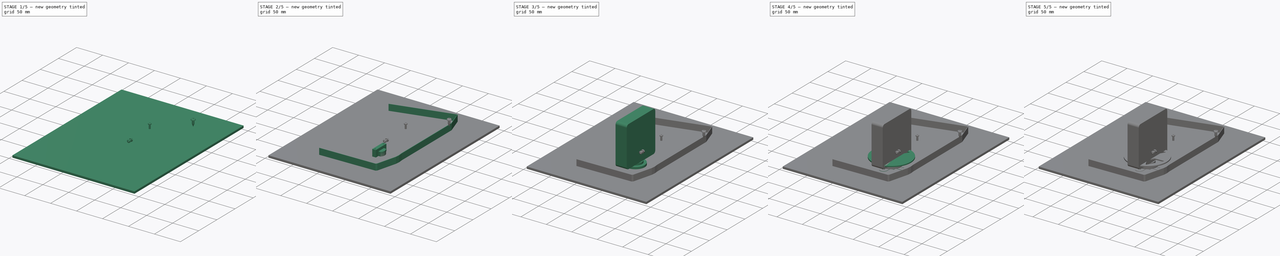
[diagram: build sequence overview — one tinted view per stage of 5, left to right]
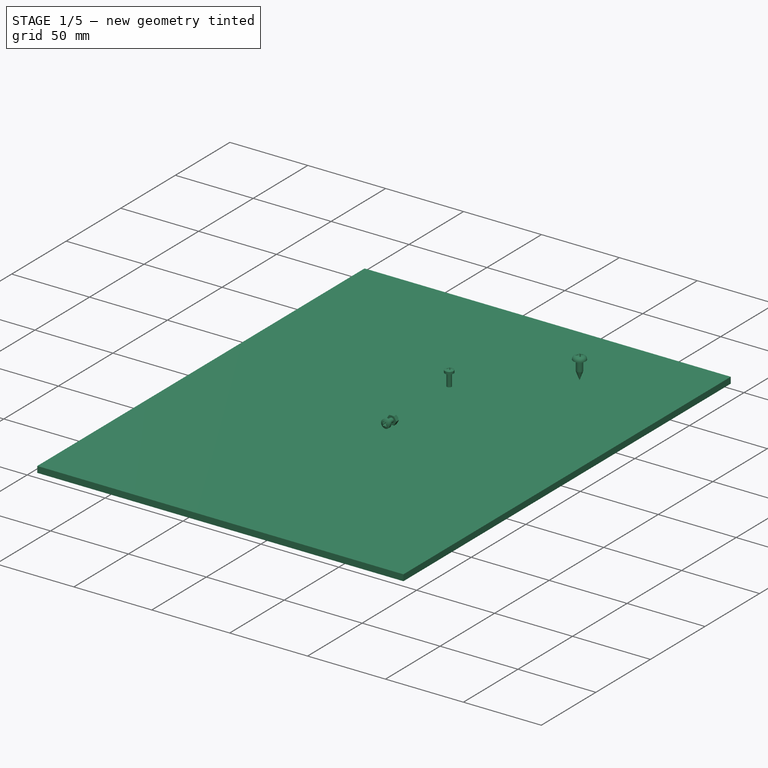
[diagram: stage 1 of 5 — iso view after this stage's code; geometry added in this stage tinted green]
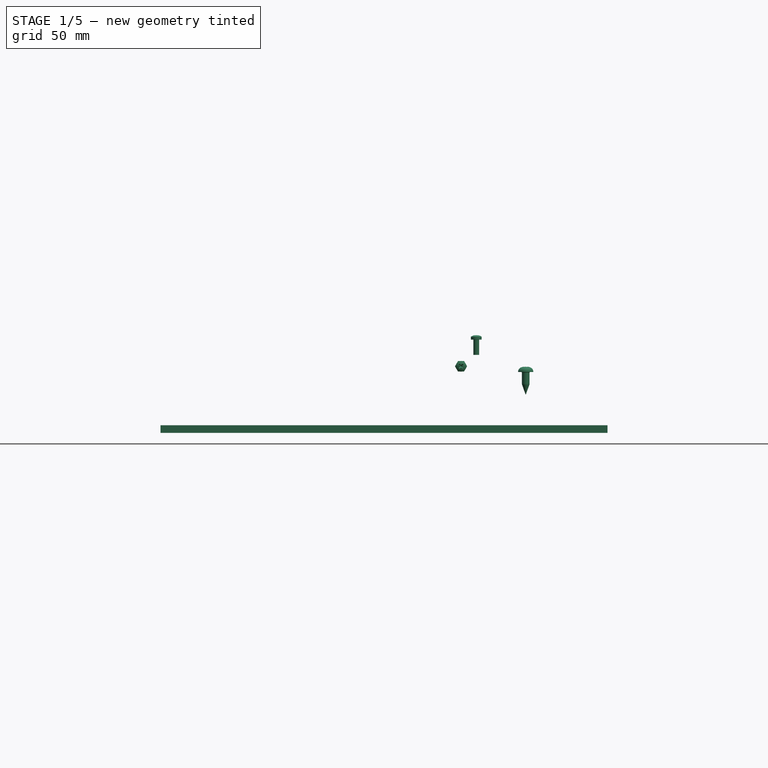
[diagram: stage 1 of 5 — front view after this stage's code; geometry added in this stage tinted green]
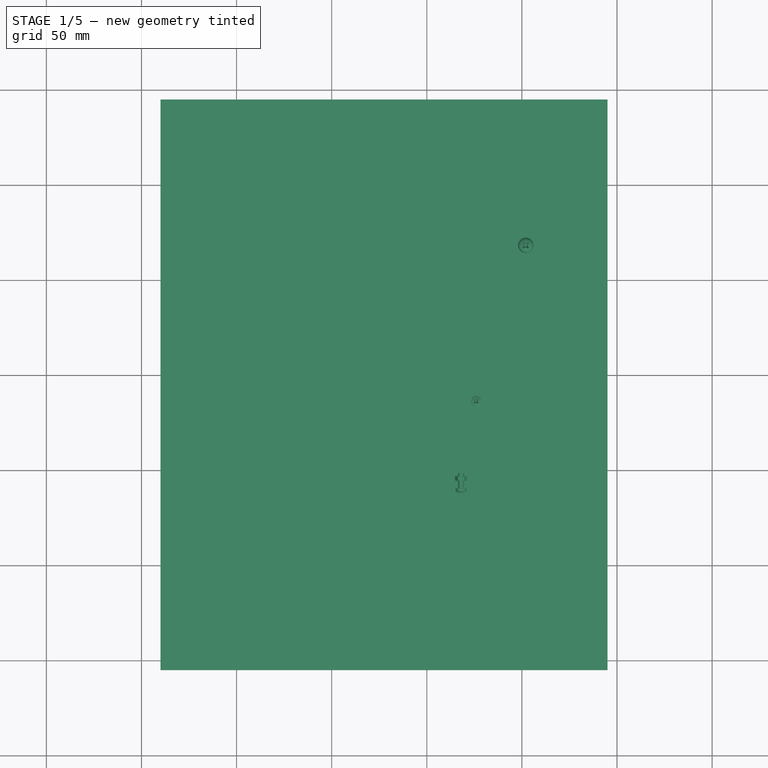
[diagram: stage 1 of 5 — top view after this stage's code; geometry added in this stage tinted green]
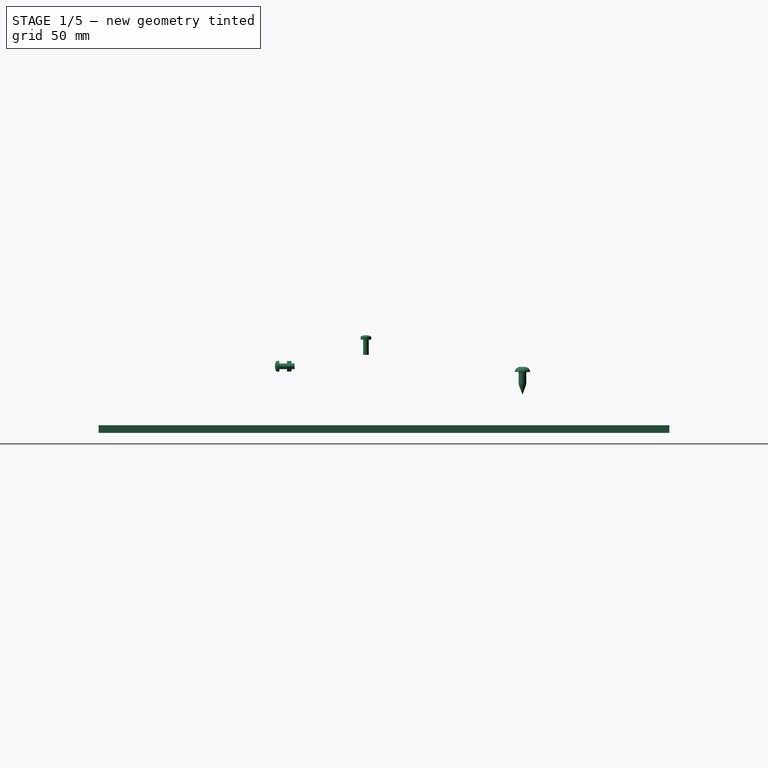
[diagram: stage 1 of 5 — right view after this stage's code; geometry added in this stage tinted green]
FCSTD DOCUMENT  (FreeCAD 0.21R33771 (Git))
Label: Layout
License: All rights reserved
LicenseURL: http://en.wikipedia.org/wiki/All_rights_reserved
objects: Part::Feature×31, Sketcher::SketchObject×24, PartDesign::Pad×17, PartDesign::Body×8, Part::FeaturePython×5, PartDesign::Pocket×4, PartDesign::PolarPattern×1, PartDesign::Fillet×1, App::LinkGroup×1
note: 113 computed .brp shape members not serialized (recipe doc carries the construction recipe); baked Part::Feature solids carry a one-line shape summary decoded from their .brp

FEATURE [PartDesign::Body] Body021  label="Film"
  Group = -> [Sketch038,Pad028]
  Origin = -> Origin012
  Placement = pos=(0,0,46) rot=(0,0,1;0rad)
  Tip = -> Pad028
FEATURE [Part::FeaturePython] PointLight  # WARN: FeaturePython — macro-defined, semantics opaque (R4)
  FadeDistance = 0
  FadePower = 0
  Placement = pos=(-15,41,608) rot=(0,0,1;0rad)
FEATURE [Part::FeaturePython] Screw  label="4 mmx12-Screw"  # Fasteners workbench fastener (typed FeaturePython)
  Placement = pos=(52,117.8,32) rot=(0,0,1;0rad)
  diameter = 5
  invert = false
  leftHanded = false
  length = 0
  lengthCustom = 12
  matchOuter = false
  offset = 0
  thread = false
  type = 35
FEATURE [Part::Feature] Screw001  label="4 mmx12-Screw001"
  Placement = pos=(52,65.8,32) rot=(0,0,1;0rad)
  shape: bbox 8 x 8 x 14.75 mm, 28 faces (baked)
FEATURE [Part::Feature] Screw002  label="4 mmx12-Screw002"
  Placement = pos=(22,100,33) rot=(0,0,1;0rad)
  shape: bbox 8 x 8 x 14.75 mm, 28 faces (baked)
FEATURE [Part::Feature] Screw003  label="4 mmx12-Screw003"
  Placement = pos=(0,78,33) rot=(0,0,1;0rad)
  shape: bbox 8 x 8 x 14.75 mm, 28 faces (baked)
FEATURE [Part::Feature] Screw004  label="4 mmx12-Screw004"
  Placement = pos=(-22,100,33) rot=(0,0,1;0rad)
  shape: bbox 8 x 8 x 14.75 mm, 28 faces (baked)
FEATURE [Part::Feature] Screw005  label="4 mmx12-Screw005"
  Placement = pos=(24,175,32) rot=(0,0,1;0rad)
  shape: bbox 8 x 8 x 14.75 mm, 28 faces (baked)
FEATURE [Part::Feature] Screw006  label="4 mmx12-Screw006"
  Placement = pos=(36,163,32) rot=(0,0,1;0rad)
  shape: bbox 8 x 8 x 14.75 mm, 28 faces (baked)
FEATURE [Part::Feature] Screw007  label="4 mmx12-Screw007"
  Placement = pos=(36,-60,32) rot=(0,0,1;0rad)
  shape: bbox 8 x 8 x 14.75 mm, 28 faces (baked)
FEATURE [Part::Feature] Screw008  label="4 mmx12-Screw008"
  Placement = pos=(24,-48,32) rot=(0,0,1;0rad)
  shape: bbox 8 x 8 x 14.75 mm, 28 faces (baked)
FEATURE [Part::Feature] Screw009  label="4 mmx12-Screw009"
  Placement = pos=(0,-26,32) rot=(0,0,1;0rad)
  shape: bbox 8 x 8 x 14.75 mm, 28 faces (baked)
FEATURE [Part::Feature] Screw010  label="4 mmx12-Screw010"
  Placement = pos=(0,10,32) rot=(0,0,1;0rad)
  shape: bbox 8 x 8 x 14.75 mm, 28 faces (baked)
FEATURE [Part::FeaturePython] Screw011  label="M3x8-Screw"  # Fasteners workbench fastener (typed FeaturePython)
  Placement = pos=(18,-10,35) rot=(1,0,0;1.5708rad)
  diameter = 4
  invert = false
  leftHanded = false
  length = 3
  lengthCustom = 8
  matchOuter = false
  offset = 0
  thread = false
  type = 72
FEATURE [Part::FeaturePython] Nut  label="M3-Nut"  # Fasteners workbench fastener (typed FeaturePython)
  Placement = pos=(18,-6,35) rot=(1,0,0;4.71239rad)
  diameter = 4
  invert = false
  leftHanded = false
  matchOuter = false
  offset = 0
  thread = false
  type = 31
FEATURE [PartDesign::Body] Body022  label="TapeHeadBase"
  Group = -> [Sketch039,Pad029,Sketch040,Pocket005]
  Origin = -> Origin013
  Placement = pos=(26,47,29) rot=(0,0,1;0rad)
  Tip = -> Pocket005
FEATURE [Part::Feature] Screw013  label="4 mmx12-Screw011"
  Placement = pos=(16,47,32) rot=(0,0,1;0rad)
  shape: bbox 8 x 8 x 14.75 mm, 28 faces (baked)
FEATURE [Part::Feature] Screw014  label="4 mmx12-Screw012"
  Placement = pos=(36,47,32) rot=(0,0,1;0rad)
  shape: bbox 8 x 8 x 14.75 mm, 28 faces (baked)
FEATURE [Part::FeaturePython] Screw015  label="M3x8-Screw013"  # Fasteners workbench fastener (typed FeaturePython)
  Placement = pos=(26,35.5,49) rot=(0,0,1;0rad)
  diameter = 4
  invert = false
  leftHanded = false
  length = 3
  lengthCustom = 8
  matchOuter = false
  offset = 0
  thread = false
  type = 72
FEATURE [Part::Feature] Screw016  label="M3x8-Screw003"
  Placement = pos=(26,58.5,49) rot=(0,0,1;0rad)
  shape: bbox 5.6 x 5.6 x 10.35 mm, 27 faces (baked)
FEATURE [Part::Feature] Screw017  label="M3x8-Screw005"
  Placement = pos=(-2.1e-15,-0.5,50.3) rot=(0,0.707107,0.707107;3.14159rad)
  shape: bbox 5.6 x 10.35 x 5.6 mm, 27 faces (baked)
FEATURE [PartDesign::Pad] Pad027
  Direction = (0,0,1)
  Length = 4
  Length2 = 10
  Profile = -> Sketch037
  ReferenceAxis = -> Sketch037 [N_Axis]
  Type = 0
FEATURE [PartDesign::Body] Body020  label="Base"
  Group = -> [Sketch037,Pad027]
  Origin = -> Origin011
  Placement = pos=(0,0,25) rot=(0,0,1;0rad)
  Tip = -> Pad027
FEATURE [Part::Feature] Body006  label="TopCover001"
  Placement = pos=(42.4,102.95,54) rot=(0,1,0;1.5708rad)
  shape: bbox 3.6 x 13.13 x 28.2 mm, 14 faces (baked)
FEATURE [Part::Feature] Body007  label="BottomCover001"
  Placement = pos=(42.3427,103,53.9518) rot=(0,-1,0;4.71239rad)
  shape: bbox 12.2 x 23.6 x 28.2 mm, 32 faces (baked)
FEATURE [Part::Feature] Screw018  label="M3x8-Screw007"
  Placement = pos=(46,131.75,65.1) rot=(-0.57735,-0.57735,-0.57735;4.18879rad)
  shape: bbox 10.35 x 5.6 x 5.6 mm, 27 faces (baked)
FEATURE [Part::Feature] Screw019  label="M3x8-Screw008"
  Placement = pos=(46,131.75,42.9) rot=(0.57735,0.57735,0.57735;2.0944rad)
  shape: bbox 10.35 x 5.6 x 5.6 mm, 27 faces (baked)
FEATURE [Part::Feature] Screw020  label="M3x8-Screw009"
  Placement = pos=(46,69.75,42.9) rot=(0.57735,0.57735,0.57735;2.0944rad)
  shape: bbox 10.35 x 5.6 x 5.6 mm, 27 faces (baked)
FEATURE [Part::Feature] Screw021  label="M3x8-Screw010"
  Placement = pos=(46,60.75,42.9) rot=(0.57735,0.57735,0.57735;2.0944rad)
  shape: bbox 10.35 x 5.6 x 5.6 mm, 27 faces (baked)
FEATURE [Part::Feature] Screw022  label="M3x8-Screw011"
  Placement = pos=(46,60.75,65.1) rot=(0.57735,0.57735,0.57735;2.0944rad)
  shape: bbox 10.35 x 5.6 x 5.6 mm, 27 faces (baked)
FEATURE [Part::Feature] Screw023  label="M3x8-Screw012"
  Placement = pos=(46,69.75,65.1) rot=(0.57735,0.57735,0.57735;2.0944rad)
  shape: bbox 10.35 x 5.6 x 5.6 mm, 27 faces (baked)
FEATURE [App::LinkGroup] LinkGroup  label="Fasteners"
  ElementList = -> [Screw,Screw001,Screw002,Screw003,Screw004,Screw005,Screw006,Screw007,Screw008,Screw009,Screw010,Screw011,Nut,Nut001,Screw012,Screw013,Screw014,Screw015,Screw016,Screw017,Screw018,Screw019,Screw020,Screw021,Screw022,Screw023]
  LinkMode = 0
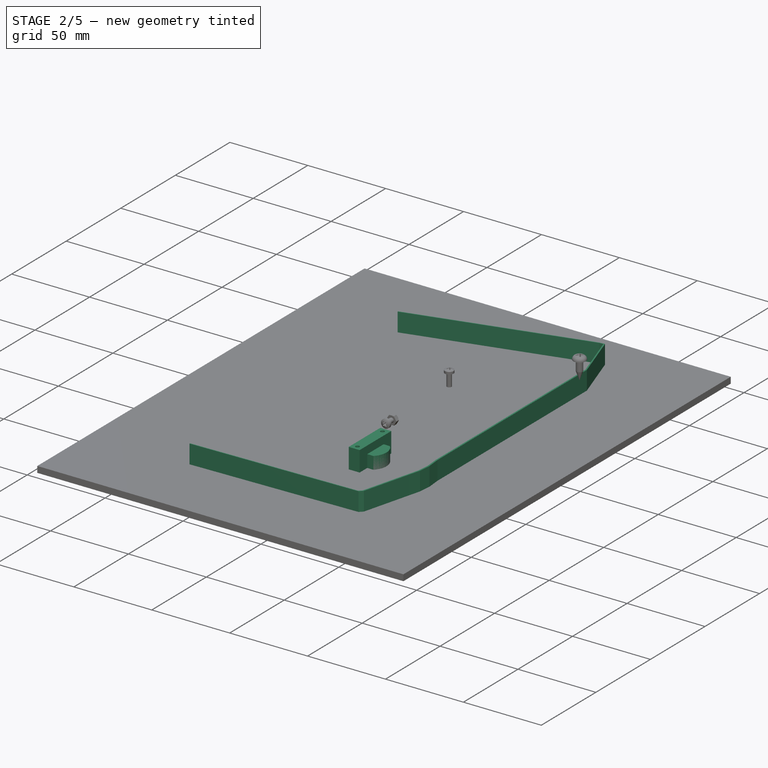
[diagram: stage 2 of 5 — iso view after this stage's code; geometry added in this stage tinted green]
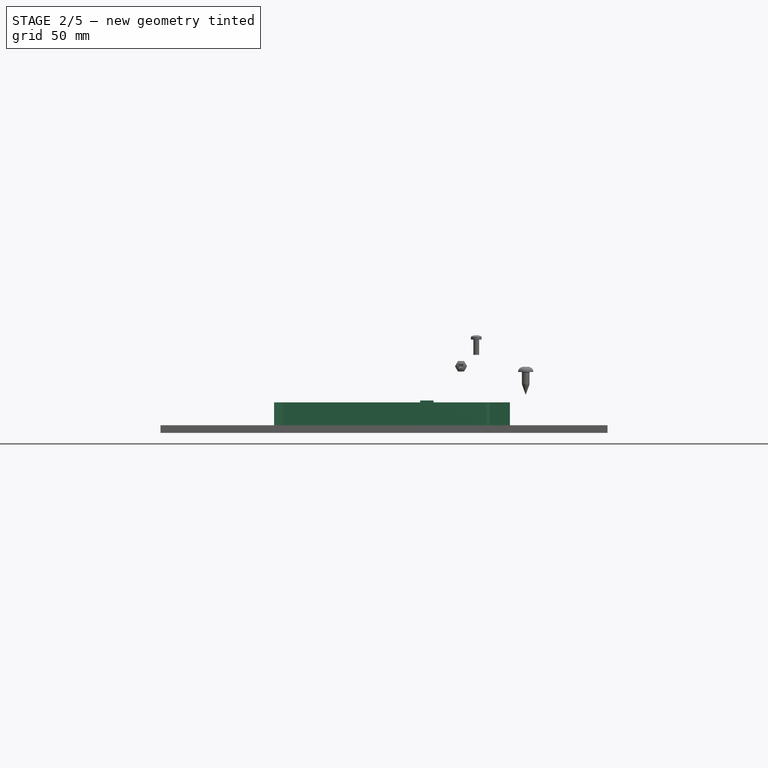
[diagram: stage 2 of 5 — front view after this stage's code; geometry added in this stage tinted green]
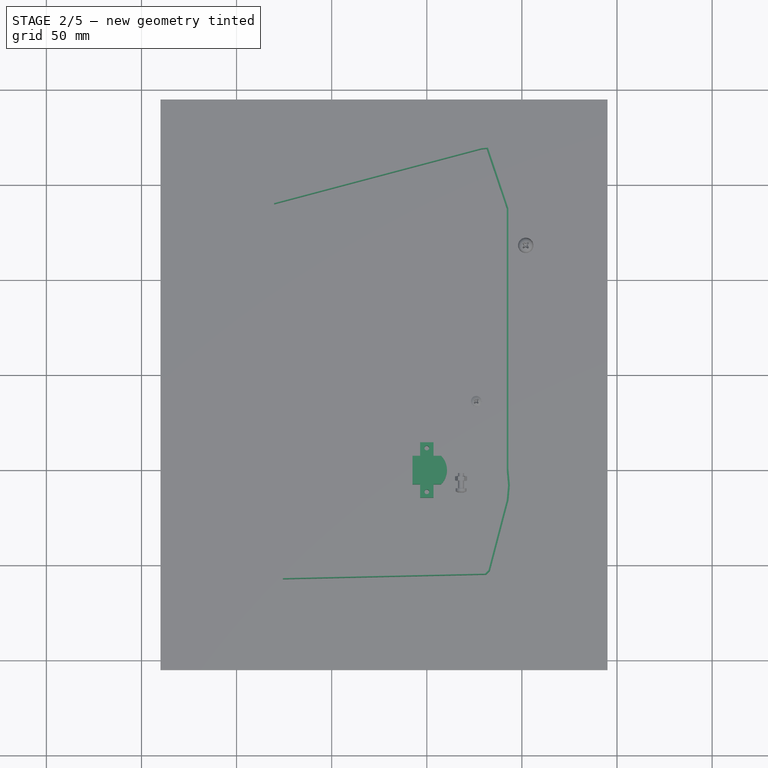
[diagram: stage 2 of 5 — top view after this stage's code; geometry added in this stage tinted green]
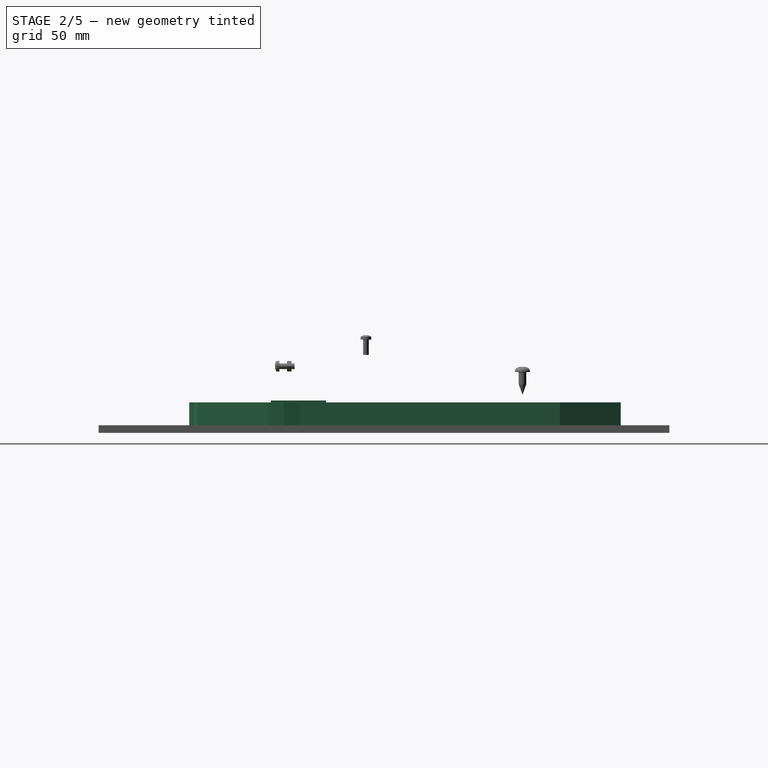
[diagram: stage 2 of 5 — right view after this stage's code; geometry added in this stage tinted green]
FEATURE [PartDesign::Body] Body008  label="Horseshoe"
  Group = -> [Sketch025,Sketch026,Pad019,Sketch027,Pocket004]
  Origin = -> Origin008
  Placement = pos=(0,100,29) rot=(0,0,1;0rad)
  Tip = -> Pocket004
FEATURE [Sketcher::SketchObject] Sketch028
  FullyConstrained = true
  MapMode = 5
  Support = -> [XY_Plane009]
  sketch-geometry (18):
    g0: LineSegment StartX=-10.5 StartY=9.5 StartZ=0 EndX=10.5 EndY=9.5 EndZ=0
    g1: LineSegment StartX=10.5 StartY=9.5 StartZ=0 EndX=10.5 EndY=-9.5 EndZ=0
    g2: LineSegment StartX=10.5 StartY=-9.5 StartZ=0 EndX=-10.5 EndY=-9.5 EndZ=0
    g3: LineSegment StartX=-10.5 StartY=-9.5 StartZ=0 EndX=-10.5 EndY=9.5 EndZ=0
    g4: Circle CenterX=0 CenterY=0 CenterZ=0 NormalX=0 NormalY=0 NormalZ=1 AngleXU=0 Radius=3
    g5: Circle CenterX=-22 CenterY=0 CenterZ=0 NormalX=0 NormalY=0 NormalZ=1 AngleXU=0 Radius=2.1
    g6: Circle CenterX=0 CenterY=-22 CenterZ=0 NormalX=0 NormalY=0 NormalZ=1 AngleXU=0 Radius=2.1
    g7: Circle CenterX=22 CenterY=0 CenterZ=0 NormalX=0 NormalY=0 NormalZ=1 AngleXU=0 Radius=2.1
    g8: LineSegment StartX=-22 StartY=0 StartZ=0 EndX=0 EndY=0 EndZ=0
    g9: LineSegment StartX=0 StartY=0 StartZ=0 EndX=22 EndY=0 EndZ=0
    g10: LineSegment StartX=0 StartY=0 StartZ=0 EndX=0 EndY=-22 EndZ=0
    g11: LineSegment StartX=-10.5 StartY=9.5 StartZ=0 EndX=-13.5 EndY=9.5 EndZ=0
    g12: LineSegment StartX=-13.5 StartY=9.5 StartZ=0 EndX=-13.5 EndY=-12.5 EndZ=0
    g13: LineSegment StartX=-13.5 StartY=-12.5 StartZ=0 EndX=13.5 EndY=-12.5 EndZ=0
    g14: LineSegment StartX=13.5 StartY=-12.5 StartZ=0 EndX=13.5 EndY=9.5 EndZ=0
    g15: LineSegment StartX=13.5 StartY=9.5 StartZ=0 EndX=10.5 EndY=9.5 EndZ=0
    g16: Circle CenterX=0 CenterY=0 CenterZ=0 NormalX=0 NormalY=0 NormalZ=1 AngleXU=0 Radius=15
    g17: Circle CenterX=-22 CenterY=0 CenterZ=0 NormalX=0 NormalY=0 NormalZ=1 AngleXU=0 Radius=5
  constraints (46):
    c: Coincident(g0,g1)
    c: Coincident(g1,g2)
    c: Coincident(g2,g3)
    c: Coincident(g3,g0)
    c: Horizontal(g0)
    c: Horizontal(g2)
    c: Vertical(g1)
    c: Vertical(g3)
    c: DistanceY(g1,g1) = 19
    c: DistanceX(g0,g0) = 21
    c: Radius(g4) = 3
    c: Symmetric(g0,g2,g4)
    c: Coincident(g4,g-1)
    c: PointOnObject(g5,g-1)
    c: PointOnObject(g6,g-2)
    c: PointOnObject(g7,g-1)
    c: Equal(g7,g6)
    c: Equal(g6,g5)
    c: Radius(g7) = 2.1
    c: Coincident(g8,g5)
    c: Coincident(g8,g4)
    c: Coincident(g9,g7)
    c: Coincident(g10,g4)
    c: Coincident(g10,g6)
    c: Equal(g10,g9)
    c: Equal(g9,g8)
    c: DistanceX(g8,g8) = 22
    c: Coincident(g9,g4)
    c: Coincident(g0,g11)
    c: Horizontal(g11)
    c: Coincident(g11,g12)
    c: Vertical(g12)
    c: Coincident(g12,g13)
    c: Horizontal(g13)
    c: Coincident(g13,g14)
    c: Vertical(g14)
    c: Coincident(g14,g15)
    c: Coincident(g15,g0)
    c: Horizontal(g15)
    c: Equal(g15,g11)
    c: DistanceX(g15,g15) = 3
    c: DistanceY(g13,g1) = 3
    c: Coincident(g16,g4)
    c: Radius(g16) = 15
    c: Coincident(g17,g5)
    c: Radius(g17) = 5
FEATURE [Sketcher::SketchObject] Sketch029
  FullyConstrained = true
  MapMode = 5
  Support = -> [XY_Plane001]
FEATURE [PartDesign::Body] Body012  label="Reel"
  Group = -> [Sketch003,Pad003,Sketch004,Pad004,Sketch005,Pad005,Sketch006,Pocket,PolarPattern,Sketch007,Pocket001,Sketch029]
  Origin = -> Origin001
  Placement = pos=(-81,129,44) rot=(0,0,1;0rad)
  Tip = -> Pocket001
FEATURE [Sketcher::SketchObject] Sketch030
  ExternalGeometry = -> [Sketch028]
  FullyConstrained = true
  MapMode = 5
  Support = -> [XY_Plane009]
  sketch-geometry (4):
    g0: LineSegment StartX=-13.5 StartY=-12.5 StartZ=0 EndX=13.5 EndY=-12.5 EndZ=0
    g1: LineSegment StartX=13.5 StartY=-12.5 StartZ=0 EndX=13.5 EndY=9.5 EndZ=0
    g2: LineSegment StartX=13.5 StartY=9.5 StartZ=0 EndX=-13.5 EndY=9.5 EndZ=0
    g3: LineSegment StartX=-13.5 StartY=9.5 StartZ=0 EndX=-13.5 EndY=-12.5 EndZ=0
  constraints (10):
    c: Coincident(g0,g1)
    c: Coincident(g1,g2)
    c: Coincident(g2,g3)
    c: Coincident(g3,g0)
    c: Horizontal(g0)
    c: Horizontal(g2)
    c: Vertical(g1)
    c: Vertical(g3)
    c: Coincident(g0,g-4)
    c: Coincident(g1,g-3)
FEATURE [PartDesign::Pad] Pad020
  Direction = (0,0,1)
  Length = 2
  Length2 = 10
  Profile = -> Sketch030
  ReferenceAxis = -> Sketch030 [N_Axis]
  Type = 0
FEATURE [PartDesign::Body] Body013  label="Lamp"
  Group = -> [Sketch028,Sketch030,Pad020,Sketch031,Pad021,Sketch032,Pad022,Sketch033,Pad023,Sketch034,Pad024,Fillet]
  Origin = -> Origin009
  Placement = pos=(0,100,28) rot=(0,0,1;0rad)
  Tip = -> Fillet
FEATURE [Sketcher::SketchObject] Sketch035
  FullyConstrained = true
  MapMode = 5
  Support = -> [XY_Plane010]
  sketch-geometry (4):
    g0: LineSegment StartX=7.5 StartY=7.5 StartZ=0 EndX=-7.5 EndY=7.5 EndZ=0
    g1: LineSegment StartX=-7.5 StartY=7.5 StartZ=0 EndX=-7.5 EndY=-7.5 EndZ=0
    g2: LineSegment StartX=-7.5 StartY=-7.5 StartZ=0 EndX=7.5 EndY=-7.5 EndZ=0
    g3: ArcOfCircle CenterX=0 CenterY=0 CenterZ=0 NormalX=0 NormalY=0 NormalZ=1 AngleXU=0 Radius=10.6066 StartAngle=5.49779 EndAngle=7.06858
  constraints (11):
    c: Horizontal(g0)
    c: Coincident(g0,g1)
    c: Coincident(g1,g2)
    c: Horizontal(g2)
    c: Coincident(g3,g0)
    c: Coincident(g3,g2)
    c: Vertical(g1)
    c: Symmetric(g0,g2,g-1)
    c: DistanceX(g0,g0) = 15
    c: Equal(g0,g1)
    c: Coincident(g3,g-1)
FEATURE [PartDesign::Pad] Pad025
  Direction = (0,0,1)
  Length = 12
  Length2 = 10
  Profile = -> Sketch035
  ReferenceAxis = -> Sketch035 [N_Axis]
  Type = 0
FEATURE [Sketcher::SketchObject] Sketch036
  ExternalGeometry = -> [Pad025]
  FullyConstrained = true
  MapMode = 5
  Support = -> [XY_Plane010]
  sketch-geometry (10):
    g0: LineSegment StartX=-7.5 StartY=7.5 StartZ=0 EndX=-2.5 EndY=7.5 EndZ=0
    g1: LineSegment StartX=-2.5 StartY=7.5 StartZ=0 EndX=-2.5 EndY=15.5 EndZ=0
    g2: LineSegment StartX=-2.5 StartY=15.5 StartZ=0 EndX=-7.5 EndY=15.5 EndZ=0
    g3: LineSegment StartX=-7.5 StartY=15.5 StartZ=0 EndX=-7.5 EndY=7.5 EndZ=0
    g4: LineSegment StartX=-7.5 StartY=-7.5 StartZ=0 EndX=-2.5 EndY=-7.5 EndZ=0
    g5: LineSegment StartX=-2.5 StartY=-7.5 StartZ=0 EndX=-2.5 EndY=-15.5 EndZ=0
    g6: LineSegment StartX=-2.5 StartY=-15.5 StartZ=0 EndX=-7.5 EndY=-15.5 EndZ=0
    g7: LineSegment StartX=-7.5 StartY=-15.5 StartZ=0 EndX=-7.5 EndY=-7.5 EndZ=0
    g8: Circle CenterX=-5 CenterY=11.5 CenterZ=0 NormalX=0 NormalY=0 NormalZ=1 AngleXU=0 Radius=1.5
    g9: Circle CenterX=-5 CenterY=-11.5 CenterZ=0 NormalX=0 NormalY=0 NormalZ=1 AngleXU=0 Radius=1.5
  constraints (26):
    c: Coincident(g0,g1)
    c: Coincident(g1,g2)
    c: Coincident(g2,g3)
    c: Coincident(g3,g0)
    c: Horizontal(g0)
    c: Horizontal(g2)
    c: Vertical(g1)
    c: Vertical(g3)
    c: Coincident(g0,g-3)
    c: Coincident(g4,g5)
    c: Coincident(g5,g6)
    c: Coincident(g6,g7)
    c: Coincident(g7,g4)
    c: Horizontal(g4)
    c: Horizontal(g6)
    c: Vertical(g5)
    c: Vertical(g7)
    c: Coincident(g4,g-4)
    c: Equal(g2,g6)
    c: Equal(g3,g7)
    c: DistanceX(g2,g2) = 5
    c: DistanceY(g3,g3) = 8
    c: Symmetric(g1,g0,g8)
    c: Symmetric(g4,g5,g9)
    c: Equal(g8,g9)
    c: Radius(g8) = 1.5
FEATURE [PartDesign::Pad] Pad026
  BaseFeature = -> Pad025
  Direction = (0,0,1)
  Length = 3
  Length2 = 10
  Profile = -> Sketch036
  ReferenceAxis = -> Sketch036 [N_Axis]
  Type = 0
FEATURE [PartDesign::Body] Body014  label="TapeHead"
  Group = -> [Sketch035,Pad025,Sketch036,Pad026]
  Origin = -> Origin010
  Placement = pos=(31,47,46) rot=(0,0,1;0rad)
  Tip = -> Pad026
FEATURE [Part::Feature] Body016  label="Reel001"
  Placement = pos=(-80,-48,44) rot=(0,0,1;0rad)
  shape: bbox 76.2 x 76.2 x 20 mm, 56 faces (baked)
FEATURE [Part::Feature] Body018  label="Guide"
  Placement = pos=(30,169,29) rot=(0,0,1;0rad)
  shape: bbox 22 x 22 x 35.5 mm, 29 faces (baked)
FEATURE [Part::Feature] Body019  label="Guide001"
  Placement = pos=(30,-54,29) rot=(0,0,1;0rad)
  shape: bbox 22 x 22 x 35.5 mm, 29 faces (baked)
FEATURE [Sketcher::SketchObject] Sketch037
  FullyConstrained = true
  MapMode = 5
  Support = -> [XY_Plane011]
  sketch-geometry (4):
    g0: LineSegment StartX=-140 StartY=195 StartZ=0 EndX=95 EndY=195 EndZ=0
    g1: LineSegment StartX=95 StartY=195 StartZ=0 EndX=95 EndY=-105 EndZ=0
    g2: LineSegment StartX=95 StartY=-105 StartZ=0 EndX=-140 EndY=-105 EndZ=0
    g3: LineSegment StartX=-140 StartY=-105 StartZ=0 EndX=-140 EndY=195 EndZ=0
  constraints (12):
    c: Coincident(g0,g1)
    c: Coincident(g1,g2)
    c: Coincident(g2,g3)
    c: Coincident(g3,g0)
    c: Horizontal(g0)
    c: Horizontal(g2)
    c: Vertical(g1)
    c: Vertical(g3)
    c: DistanceY(g3,g3) = 300
    c: DistanceX(g0,g0) = 235
    c: DistanceX(g-1,g0) = 95
    c: DistanceY(g-1,g0) = 195
FEATURE [Sketcher::SketchObject] Sketch038
  FullyConstrained = false
  MapMode = 5
  Support = -> [XY_Plane012]
  sketch-geometry (22):
    g0: LineSegment StartX=28.8647 StartY=168.683 StartZ=0 EndX=31.5162 EndY=168.94 EndZ=0
    g1: LineSegment StartX=31.5162 StartY=168.94 StartZ=0 EndX=42.0322 EndY=137.589 EndZ=0
    g2: LineSegment StartX=42.0322 StartY=137.589 StartZ=0 EndX=42.0322 EndY=0.00911387 EndZ=0
    g3: LineSegment StartX=42.0322 StartY=0.00911387 StartZ=0 EndX=42.7453 EndY=-7.82542 EndZ=0
    g4: LineSegment StartX=42.7453 StartY=-7.82542 StartZ=0 EndX=42.0017 EndY=-16.0173 EndZ=0
    g5: LineSegment StartX=42.0017 StartY=-16.0173 StartZ=0 EndX=40.1891 EndY=-22.9026 EndZ=0
    g6: LineSegment StartX=40.1891 StartY=-22.9026 StartZ=0 EndX=32.4046 EndY=-52.7607 EndZ=0
    g7: LineSegment StartX=32.4046 StartY=-52.7607 StartZ=0 EndX=30.6609 EndY=-54.4977 EndZ=0
    g8: LineSegment StartX=30.6609 StartY=-54.4977 StartZ=0 EndX=-75.6411 EndY=-56.885 EndZ=0
    g9: LineSegment StartX=28.8647 StartY=168.683 StartZ=0 EndX=-80.1338 EndY=139.819 EndZ=0
    g10: LineSegment StartX=-80.1338 StartY=139.819 StartZ=0 EndX=-80.2618 EndY=140.302 EndZ=0
    g11: LineSegment StartX=-80.2618 StartY=140.302 StartZ=0 EndX=28.6957 EndY=169.155 EndZ=0
    g12: LineSegment StartX=28.6957 StartY=169.155 StartZ=0 EndX=32.1714 EndY=169.493 EndZ=0
    g13: LineSegment StartX=32.1714 StartY=169.493 StartZ=0 EndX=42.906 EndY=137.49 EndZ=0
    g14: LineSegment StartX=42.906 StartY=137.49 StartZ=0 EndX=42.906 EndY=0.600987 EndZ=0
    g15: LineSegment StartX=42.906 StartY=0.600987 StartZ=0 EndX=43.6782 EndY=-7.88362 EndZ=0
    g16: LineSegment StartX=43.6782 StartY=-7.88362 StartZ=0 EndX=42.9867 EndY=-15.5021 EndZ=0
    g17: LineSegment StartX=42.9867 StartY=-15.5021 StartZ=0 EndX=41.0023 EndY=-23.0396 EndZ=0
    g18: LineSegment StartX=41.0023 StartY=-23.0396 StartZ=0 EndX=33.2019 EndY=-52.9586 EndZ=0
    g19: LineSegment StartX=33.2019 StartY=-52.9586 StartZ=0 EndX=31.1665 EndY=-54.9864 EndZ=0
    g20: LineSegment StartX=31.1665 StartY=-54.9864 StartZ=0 EndX=-75.6411 EndY=-57.385 EndZ=0
    g21: LineSegment StartX=-75.6411 StartY=-57.385 StartZ=0 EndX=-75.6411 EndY=-56.885 EndZ=0
  constraints (37):
    c: Coincident(g0,g1)
    c: Coincident(g1,g2)
    c: Vertical(g2)
    c: Coincident(g2,g3)
    c: Coincident(g3,g4)
    c: Coincident(g4,g5)
    c: Coincident(g5,g6)
    c: Coincident(g6,g7)
    c: Coincident(g7,g8)
    c: Coincident(g0,g9)
    c: Coincident(g9,g10)
    c: Coincident(g10,g11)
    c: Coincident(g11,g12)
    c: Coincident(g12,g13)
    c: Coincident(g13,g14)
    c: Vertical(g14)
    c: Coincident(g14,g15)
    c: Coincident(g15,g16)
    c: Coincident(g16,g17)
    c: Coincident(g17,g18)
    c: Coincident(g18,g19)
    c: Coincident(g19,g20)
    c: Coincident(g20,g21)
    c: Coincident(g21,g8)
    c: Vertical(g21)
    c: DistanceY(g21,g21) = 0.5
    c: Parallel(g8,g20)
    c: Parallel(g19,g7)
    c: Parallel(g6,g18)
    c: Parallel(g17,g5)
    c: Parallel(g4,g16)
    c: Parallel(g15,g3)
    c: Parallel(g13,g1)
    c: Parallel(g12,g0)
    c: Parallel(g9,g11)
    c: Distance(g10) = 0.5
    c: Angle(g9,g10) = 1.5708
FEATURE [PartDesign::Pad] Pad028
  Direction = (0,0,1)
  Length = 16
  Length2 = 10
  Profile = -> Sketch038
  ReferenceAxis = -> Sketch038 [N_Axis]
  Type = 0
FEATURE [Part::Feature] Nut001  label="M3-Nut001"
  Placement = pos=(-17.8,-12.5,35) rot=(-1,0,0;1.5708rad)
  shape: bbox 6.351 x 2.4 x 6.351 mm, 25 faces (baked)
FEATURE [Part::Feature] Screw012  label="M3x8-Screw001"
  Placement = pos=(-17.7,-5.9,35) rot=(0,0.707107,0.707107;3.14159rad)
  shape: bbox 5.6 x 10.35 x 5.6 mm, 27 faces (baked)
FEATURE [Sketcher::SketchObject] Sketch039
  FullyConstrained = true
  MapMode = 5
  Support = -> [XY_Plane013]
  sketch-geometry (16):
    g0: Circle CenterX=0 CenterY=11.5 CenterZ=0 NormalX=0 NormalY=0 NormalZ=1 AngleXU=0 Radius=1.25
    g1: Circle CenterX=0 CenterY=-11.5 CenterZ=0 NormalX=0 NormalY=0 NormalZ=1 AngleXU=0 Radius=1.25
    g2: Circle CenterX=-10 CenterY=0 CenterZ=0 NormalX=0 NormalY=0 NormalZ=1 AngleXU=0 Radius=2.1
    g3: Circle CenterX=10 CenterY=0 CenterZ=0 NormalX=0 NormalY=0 NormalZ=1 AngleXU=0 Radius=2.1
    g4: LineSegment StartX=-3.5 StartY=14.5 StartZ=0 EndX=3.5 EndY=14.5 EndZ=0
    g5: LineSegment StartX=3.5 StartY=14.5 StartZ=0 EndX=3.5 EndY=4 EndZ=0
    g6: LineSegment StartX=3.5 StartY=4 StartZ=0 EndX=13.5 EndY=4 EndZ=0
    g7: LineSegment StartX=13.5 StartY=4 StartZ=0 EndX=13.5 EndY=-4 EndZ=0
    g8: LineSegment StartX=13.5 StartY=-4 StartZ=0 EndX=3.5 EndY=-4 EndZ=0
    g9: LineSegment StartX=3.5 StartY=-4 StartZ=0 EndX=3.5 EndY=-14.5 EndZ=0
    g10: LineSegment StartX=3.5 StartY=-14.5 StartZ=0 EndX=-3.5 EndY=-14.5 EndZ=0
    g11: LineSegment StartX=-3.5 StartY=-14.5 StartZ=0 EndX=-3.5 EndY=-4 EndZ=0
    g12: LineSegment StartX=-3.5 StartY=-4 StartZ=0 EndX=-13.5 EndY=-4 EndZ=0
    g13: LineSegment StartX=-13.5 StartY=-4 StartZ=0 EndX=-13.5 EndY=4 EndZ=0
    g14: LineSegment StartX=-13.5 StartY=4 StartZ=0 EndX=-3.5 EndY=4 EndZ=0
    g15: LineSegment StartX=-3.5 StartY=4 StartZ=0 EndX=-3.5 EndY=14.5 EndZ=0
  constraints (46):
    c: Equal(g1,g0)
    c: Radius(g0) = 1.25
    c: Vertical(g1,g0)
    c: DistanceY(g1,g0) = 23
    c: Symmetric(g0,g1,g-1)
    c: PointOnObject(g2,g-1)
    c: PointOnObject(g3,g-1)
    c: Equal(g3,g2)
    c: Radius(g3) = 2.1
    c: Horizontal(g4)
    c: Coincident(g4,g5)
    c: Vertical(g5)
    c: Coincident(g5,g6)
    c: Horizontal(g6)
    c: Coincident(g6,g7)
    c: Vertical(g7)
    c: Coincident(g7,g8)
    c: Coincident(g8,g9)
    c: Coincident(g9,g10)
    c: Horizontal(g10)
    c: Coincident(g10,g11)
    c: Coincident(g11,g12)
    c: Horizontal(g12)
    c: Coincident(g12,g13)
    c: Coincident(g13,g14)
    c: Coincident(g14,g15)
    c: Coincident(g15,g4)
    c: Vertical(g15)
    c: Vertical(g11)
    c: Vertical(g9)
    c: Horizontal(g14)
    c: Horizontal(g8)
    c: Vertical(g13)
    c: DistanceX(g4,g4) = 7
    c: Equal(g4,g10)
    c: Vertical(g5,g8)
    c: Horizontal(g5,g14)
    c: Horizontal(g11,g8)
    c: DistanceX(g2,g-1) = 10
    c: DistanceX(g-1,g3) = 10
    c: DistanceY(g7,g7) = 8
    c: DistanceX(g3,g6) = 3.5
    c: Equal(g14,g6)
    c: Symmetric(g8,g14,g-1)
    c: DistanceY(g9,g1) = 3
    c: Equal(g5,g9)
FEATURE [PartDesign::Pad] Pad029
  Direction = (0,0,1)
  Length = 17
  Length2 = 10
  Profile = -> Sketch039
  ReferenceAxis = -> Sketch039 [N_Axis]
  Type = 0
FEATURE [Sketcher::SketchObject] Sketch040
  ExternalGeometry = -> [Pad029]
  FullyConstrained = true
  MapMode = 5
  Placement = pos=(0,0,17) rot=(0,0,1;0rad)
  Support = -> [Pad029]
  sketch-geometry (8):
    g0: LineSegment StartX=-13.5 StartY=4 StartZ=0 EndX=-3.5 EndY=4 EndZ=0
    g1: LineSegment StartX=-3.5 StartY=4 StartZ=0 EndX=-3.5 EndY=-4 EndZ=0
    g2: LineSegment StartX=-3.5 StartY=-4 StartZ=0 EndX=-13.5 EndY=-4 EndZ=0
    g3: LineSegment StartX=-13.5 StartY=-4 StartZ=0 EndX=-13.5 EndY=4 EndZ=0
    g4: LineSegment StartX=13.5 StartY=4 StartZ=0 EndX=3.5 EndY=4 EndZ=0
    g5: LineSegment StartX=3.5 StartY=4 StartZ=0 EndX=3.5 EndY=-4 EndZ=0
    g6: LineSegment StartX=3.5 StartY=-4 StartZ=0 EndX=13.5 EndY=-4 EndZ=0
    g7: LineSegment StartX=13.5 StartY=-4 StartZ=0 EndX=13.5 EndY=4 EndZ=0
  constraints (20):
    c: Coincident(g0,g1)
    c: Coincident(g1,g2)
    c: Coincident(g2,g3)
    c: Coincident(g3,g0)
    c: Horizontal(g0)
    c: Horizontal(g2)
    c: Vertical(g1)
    c: Vertical(g3)
    c: Coincident(g0,g-3)
    c: Coincident(g1,g-4)
    c: Coincident(g4,g5)
    c: Coincident(g5,g6)
    c: Coincident(g6,g7)
    c: Coincident(g7,g4)
    c: Horizontal(g4)
    c: Horizontal(g6)
    c: Vertical(g5)
    c: Vertical(g7)
    c: Coincident(g4,g-6)
    c: Coincident(g5,g-5)
FEATURE [PartDesign::Pocket] Pocket005
  BaseFeature = -> Pad029
  Direction = (0,0,-1)
  Length = 14
  Length2 = 5
  Profile = -> Sketch040
  ReferenceAxis = -> Sketch040 [N_Axis]
  Type = 0
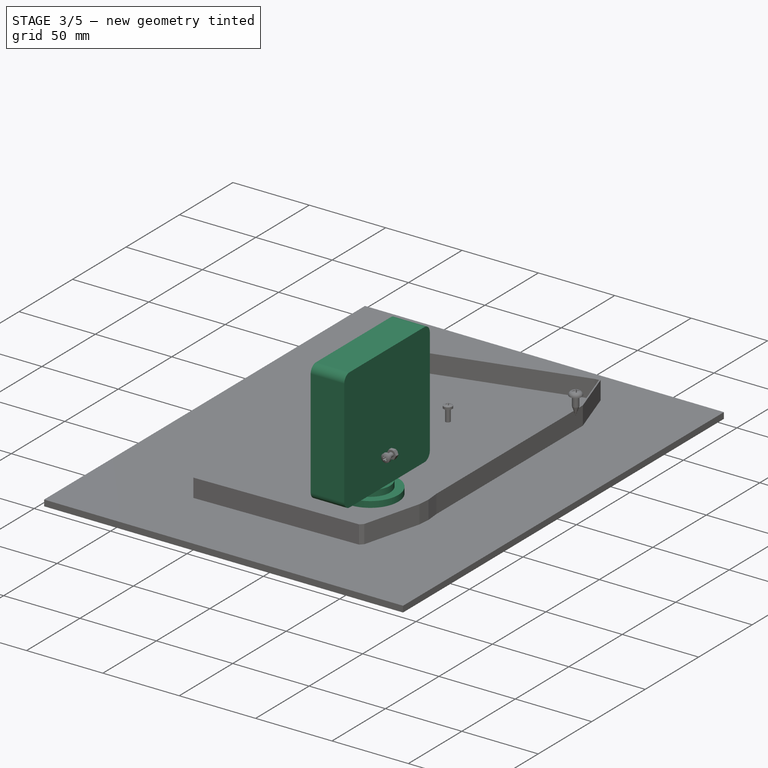
[diagram: stage 3 of 5 — iso view after this stage's code; geometry added in this stage tinted green]
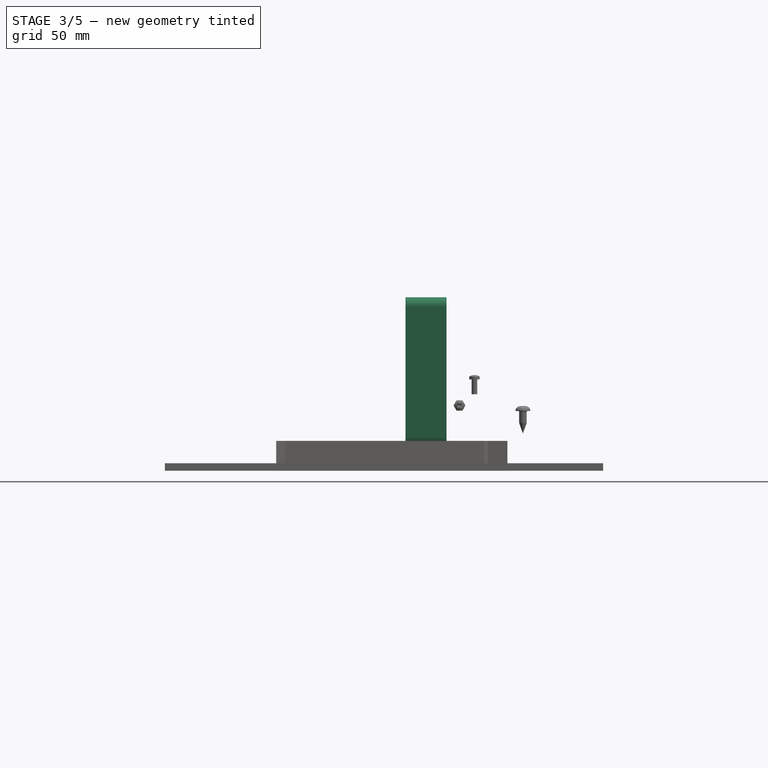
[diagram: stage 3 of 5 — front view after this stage's code; geometry added in this stage tinted green]
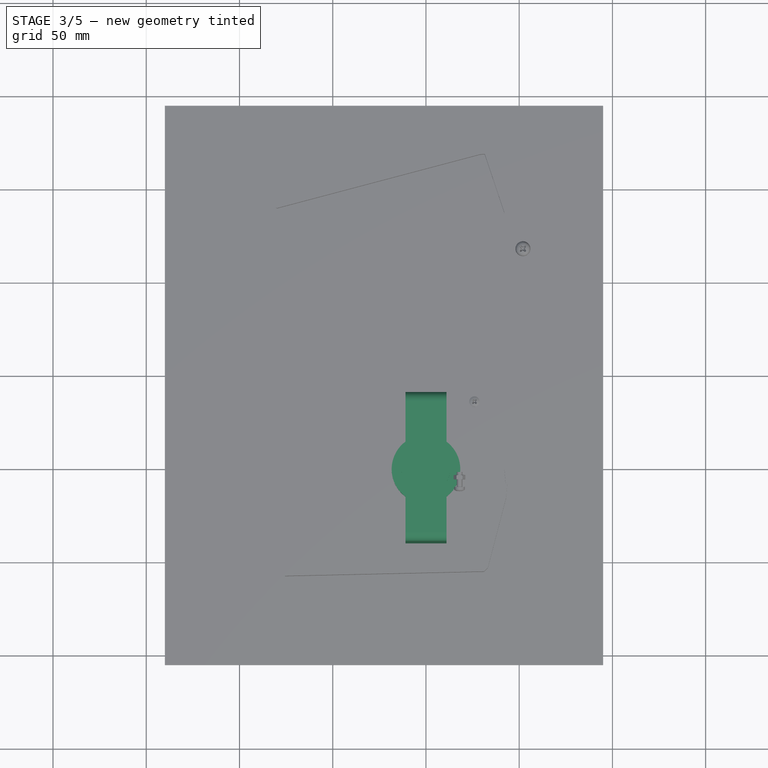
[diagram: stage 3 of 5 — top view after this stage's code; geometry added in this stage tinted green]
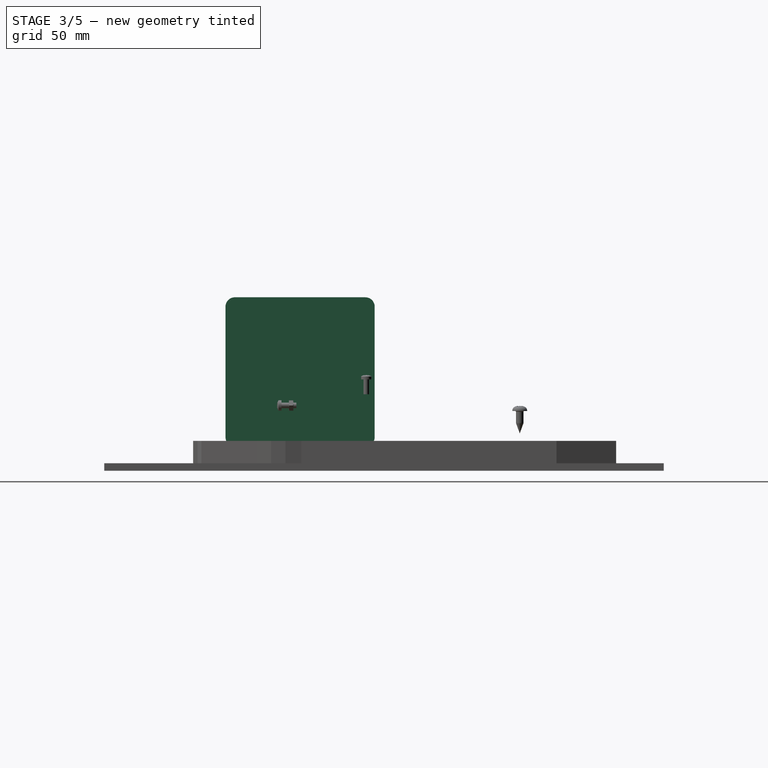
[diagram: stage 3 of 5 — right view after this stage's code; geometry added in this stage tinted green]
FEATURE [Sketcher::SketchObject] Sketch031
  ExternalGeometry = -> [Sketch028]
  FullyConstrained = true
  MapMode = 5
  Placement = pos=(0,0,2) rot=(0,0,1;0rad)
  Support = -> [Pad020]
  sketch-geometry (4):
    g0: LineSegment StartX=-10.5 StartY=9.5 StartZ=0 EndX=10.5 EndY=9.5 EndZ=0
    g1: LineSegment StartX=10.5 StartY=9.5 StartZ=0 EndX=10.5 EndY=-9.5 EndZ=0
    g2: LineSegment StartX=10.5 StartY=-9.5 StartZ=0 EndX=-10.5 EndY=-9.5 EndZ=0
    g3: LineSegment StartX=-10.5 StartY=-9.5 StartZ=0 EndX=-10.5 EndY=9.5 EndZ=0
  constraints (10):
    c: Coincident(g0,g1)
    c: Coincident(g1,g2)
    c: Coincident(g2,g3)
    c: Coincident(g3,g0)
    c: Horizontal(g0)
    c: Horizontal(g2)
    c: Vertical(g1)
    c: Vertical(g3)
    c: Coincident(g0,g-4)
    c: Coincident(g1,g-3)
FEATURE [PartDesign::Pad] Pad021
  BaseFeature = -> Pad020
  Direction = (0,0,1)
  Length = 3
  Length2 = 10
  Profile = -> Sketch031
  ReferenceAxis = -> Sketch031 [N_Axis]
  Type = 0
FEATURE [Sketcher::SketchObject] Sketch032
  ExternalGeometry = -> [Pad021]
  FullyConstrained = true
  MapMode = 5
  Placement = pos=(0,0,5) rot=(0,0,1;0rad)
  Support = -> [Pad021]
  sketch-geometry (1):
    g0: Circle CenterX=0 CenterY=0 CenterZ=0 NormalX=0 NormalY=0 NormalZ=1 AngleXU=0 Radius=18.3984
  constraints (2):
    c: Coincident(g0,g-1)
    c: PointOnObject(g-3,g0)
FEATURE [PartDesign::Pad] Pad022
  BaseFeature = -> Pad021
  Direction = (0,0,1)
  Length = 4
  Length2 = 10
  Profile = -> Sketch032
  ReferenceAxis = -> Sketch032 [N_Axis]
  Type = 0
FEATURE [Sketcher::SketchObject] Sketch033
  FullyConstrained = true
  MapMode = 5
  Placement = pos=(0,0,9) rot=(0,0,1;0rad)
  Support = -> [Pad022]
  sketch-geometry (1):
    g0: Circle CenterX=0 CenterY=0 CenterZ=0 NormalX=0 NormalY=0 NormalZ=1 AngleXU=0 Radius=13
  constraints (2):
    c: Coincident(g0,g-1)
    c: Radius(g0) = 13
FEATURE [PartDesign::Pad] Pad023
  BaseFeature = -> Pad022
  Direction = (0,0,1)
  Length = 4
  Length2 = 10
  Profile = -> Sketch033
  ReferenceAxis = -> Sketch033 [N_Axis]
  Type = 0
FEATURE [Sketcher::SketchObject] Sketch034
  FullyConstrained = true
  MapMode = 5
  Placement = pos=(0,0,13) rot=(0,0,1;0rad)
  Support = -> [Pad023]
  sketch-geometry (4):
    g0: LineSegment StartX=-11 StartY=40 StartZ=0 EndX=11 EndY=40 EndZ=0
    g1: LineSegment StartX=11 StartY=40 StartZ=0 EndX=11 EndY=-40 EndZ=0
    g2: LineSegment StartX=11 StartY=-40 StartZ=0 EndX=-11 EndY=-40 EndZ=0
    g3: LineSegment StartX=-11 StartY=-40 StartZ=0 EndX=-11 EndY=40 EndZ=0
  constraints (11):
    c: Coincident(g0,g1)
    c: Coincident(g1,g2)
    c: Coincident(g2,g3)
    c: Coincident(g3,g0)
    c: Horizontal(g0)
    c: Horizontal(g2)
    c: Vertical(g1)
    c: Vertical(g3)
    c: Symmetric(g1,g0,g-1)
    c: DistanceY(g1,g1) = 80
    c: DistanceX(g0,g0) = 22
FEATURE [PartDesign::Pad] Pad024
  BaseFeature = -> Pad023
  Direction = (0,0,1)
  Length = 80
  Length2 = 10
  Profile = -> Sketch034
  ReferenceAxis = -> Sketch034 [N_Axis]
  Type = 0
FEATURE [PartDesign::Fillet] Fillet
  Base = -> Pad024 [Edge48,Edge51,Edge33,Edge36]
  BaseFeature = -> Pad024
  Radius = 5
  SupportTransform = false
  UseAllEdges = false
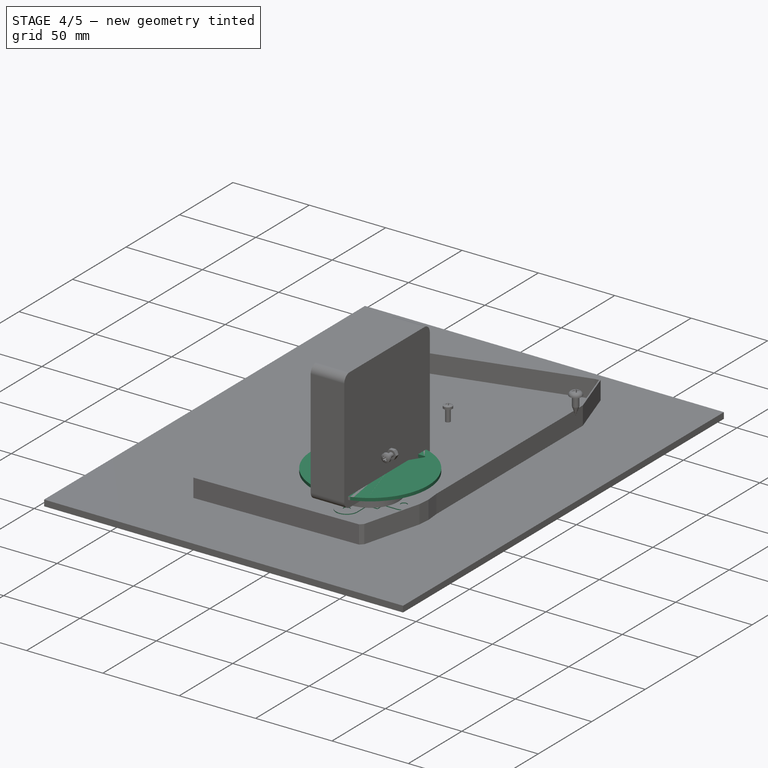
[diagram: stage 4 of 5 — iso view after this stage's code; geometry added in this stage tinted green]
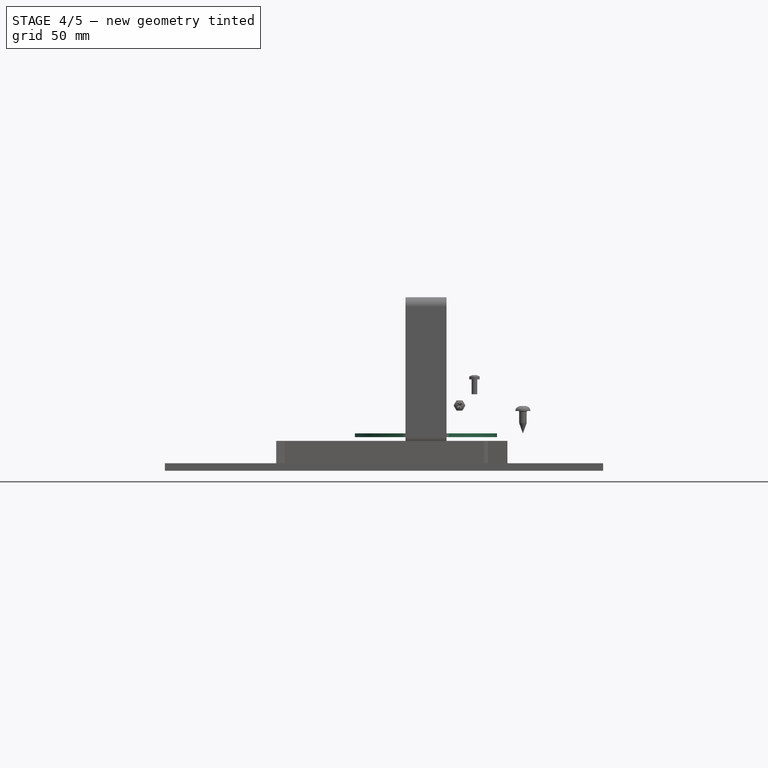
[diagram: stage 4 of 5 — front view after this stage's code; geometry added in this stage tinted green]
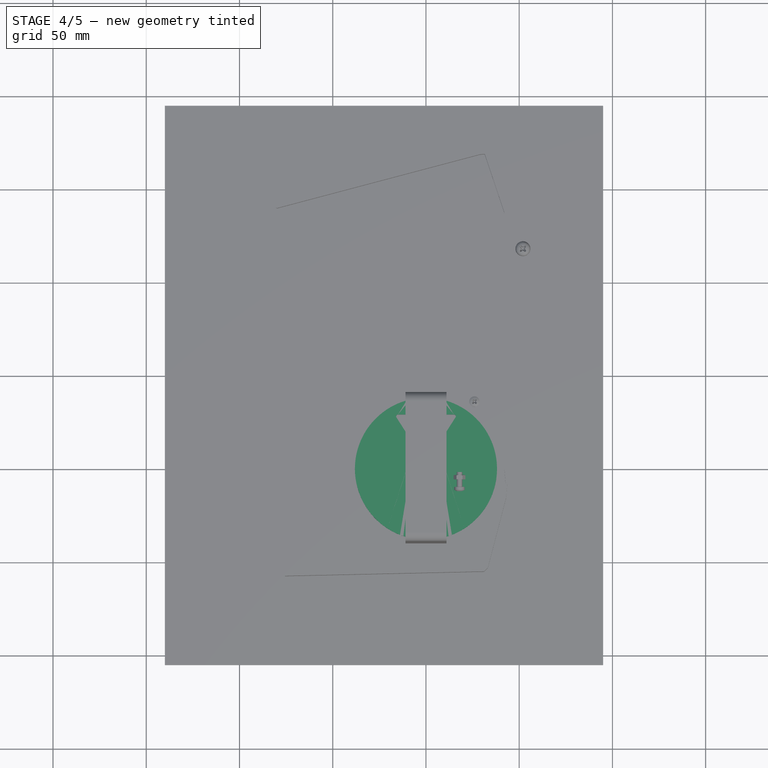
[diagram: stage 4 of 5 — top view after this stage's code; geometry added in this stage tinted green]
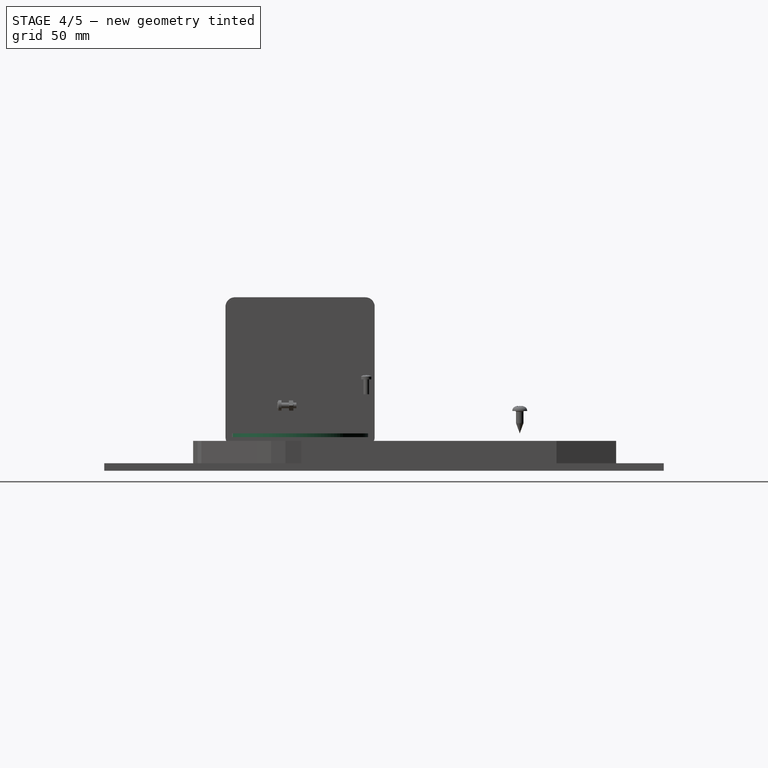
[diagram: stage 4 of 5 — right view after this stage's code; geometry added in this stage tinted green]
FEATURE [PartDesign::Body] Body  label="Motor"
  Group = -> [Sketch,Pad,Sketch001,Pad001,Sketch002,Pad002]
  Origin = -> Origin
  Placement = pos=(0,-8,0) rot=(0,0,1;0rad)
  Tip = -> Pad002
FEATURE [Part::Feature] Body001  label="Bracket1"
  Placement = pos=(0,-8,29) rot=(0,0,1;0rad)
  shape: bbox 44.8 x 22.79 x 12 mm, 23 faces (baked)
FEATURE [Part::Feature] Body002  label="Bracket2"
  Placement = pos=(0,-8,29) rot=(0,0,1;3.14159rad)
  shape: bbox 44.8 x 22.79 x 12 mm, 23 faces (baked)
FEATURE [Part::Feature] Body003  label="DrivingWheel"
  Placement = pos=(0,-8,46) rot=(0,0,1;0rad)
  shape: bbox 87.83 x 87.83 x 16 mm, 529 faces (baked)
FEATURE [Part::Feature] Body010  label="MainHolder002"
  Placement = pos=(40,103,54) rot=(0,1,0;1.5708rad)
  shape: bbox 20 x 80 x 39.1 mm, 47 faces (baked)
FEATURE [Sketcher::SketchObject] Sketch003
  FullyConstrained = true
  MapMode = 5
  Support = -> [XY_Plane001]
  sketch-geometry (1):
    g0: Circle CenterX=0 CenterY=0 CenterZ=0 NormalX=0 NormalY=0 NormalZ=1 AngleXU=0 Radius=38.1
  constraints (2):
    c: Coincident(g0,g-1)
    c: Radius(g0) = 38.1
FEATURE [PartDesign::Pad] Pad003
  Direction = (0,0,1)
  Length = 2
  Length2 = 10
  Profile = -> Sketch003
  ReferenceAxis = -> Sketch003 [N_Axis]
  Type = 0
FEATURE [Sketcher::SketchObject] Sketch004
  FullyConstrained = true
  MapMode = 5
  Placement = pos=(0,0,2) rot=(0,0,1;0rad)
  Support = -> [Pad003]
  sketch-geometry (1):
    g0: Circle CenterX=0 CenterY=0 CenterZ=0 NormalX=0 NormalY=0 NormalZ=1 AngleXU=0 Radius=8
  constraints (2):
    c: Coincident(g0,g-1)
    c: Radius(g0) = 8
FEATURE [PartDesign::Pad] Pad004
  BaseFeature = -> Pad003
  Direction = (0,0,1)
  Length = 16
  Length2 = 10
  Profile = -> Sketch004
  ReferenceAxis = -> Sketch004 [N_Axis]
  Type = 0
FEATURE [Sketcher::SketchObject] Sketch005
  ExternalGeometry = -> [Pad004]
  FullyConstrained = true
  MapMode = 5
  Placement = pos=(0,0,18) rot=(0,0,1;0rad)
  Support = -> [Pad004]
  sketch-geometry (1):
    g0: Circle CenterX=0 CenterY=0 CenterZ=0 NormalX=0 NormalY=0 NormalZ=1 AngleXU=0 Radius=38.1
  constraints (2):
    c: Coincident(g0,g-3)
    c: Equal(g0,g-3)
FEATURE [PartDesign::Pad] Pad005
  BaseFeature = -> Pad004
  Direction = (0,0,1)
  Length = 2
  Length2 = 10
  Profile = -> Sketch005
  ReferenceAxis = -> Sketch005 [N_Axis]
  Type = 0
FEATURE [Sketcher::SketchObject] Sketch006
  ExternalGeometry = -> [Pad005]
  FullyConstrained = true
  MapMode = 5
  Placement = pos=(0,0,20) rot=(0,0,1;0rad)
  Support = -> [Pad005]
  sketch-geometry (12):
    g0: LineSegment StartX=-15 StartY=29.1 StartZ=0 EndX=15 EndY=29.1 EndZ=0
    g1: LineSegment StartX=15.8429 StartY=27.562 StartZ=0 EndX=6.84292 EndY=13.462 EndZ=0
    g2: LineSegment StartX=6 StartY=13 StartZ=0 EndX=-6 EndY=13 EndZ=0
    g3: LineSegment StartX=-6.84292 StartY=13.462 StartZ=0 EndX=-15.8429 EndY=27.562 EndZ=0
    g4: ArcOfCircle CenterX=-15 CenterY=28.1 CenterZ=0 NormalX=0 NormalY=0 NormalZ=1 AngleXU=0 Radius=1 StartAngle=1.5708 EndAngle=3.7097
    g5: ArcOfCircle CenterX=-6 CenterY=14 CenterZ=0 NormalX=0 NormalY=0 NormalZ=1 AngleXU=0 Radius=1 StartAngle=3.7097 EndAngle=4.71239
    g6: ArcOfCircle CenterX=6 CenterY=14 CenterZ=0 NormalX=0 NormalY=0 NormalZ=1 AngleXU=0 Radius=1 StartAngle=4.71239 EndAngle=5.71508
    g7: ArcOfCircle CenterX=15 CenterY=28.1 CenterZ=0 NormalX=0 NormalY=0 NormalZ=1 AngleXU=0 Radius=1 StartAngle=5.71508 EndAngle=7.85398
    g8: GeomPoint X=0 Y=29.1 Z=0
    g9: GeomPoint X=0 Y=38.1 Z=0
    g10: GeomPoint X=-1.3e-15 Y=13 Z=0
    g11: GeomPoint X=0 Y=8 Z=0
  constraints (26):
    c: Horizontal(g0)
    c: Horizontal(g2)
    c: Equal(g3,g1)
    c: Tangent(g0,g4) = 1.5708
    c: Tangent(g3,g4) = 1.5708
    c: Tangent(g3,g5) = 1.5708
    c: Tangent(g2,g5) = 1.5708
    c: Tangent(g2,g6) = 1.5708
    c: Tangent(g1,g6) = 1.5708
    c: Tangent(g1,g7) = 1.5708
    c: Tangent(g0,g7) = 1.5708
    c: Equal(g4,g5)
    c: Equal(g5,g6)
    c: Equal(g6,g7)
    c: Radius(g4) = 1
    c: Symmetric(g0,g0,g8)
    c: PointOnObject(g8,g-2)
    c: PointOnObject(g9,g-2)
    c: PointOnObject(g9,g-3)
    c: DistanceY(g8,g9) = 9
    c: Symmetric(g2,g2,g10)
    c: PointOnObject(g11,g-4)
    c: PointOnObject(g11,g-2)
    c: DistanceY(g11,g10) = 5
    c: DistanceX(g0,g0) = 30
    c: DistanceX(g2,g2) = 12
FEATURE [PartDesign::Pocket] Pocket
  BaseFeature = -> Pad005
  Direction = (0,0,-1)
  Length = 5
  Length2 = 5
  Profile = -> Sketch006
  ReferenceAxis = -> Sketch006 [N_Axis]
  Type = 1
FEATURE [Sketcher::SketchObject] Sketch025
  FullyConstrained = true
  MapMode = 5
  Support = -> [XY_Plane008]
  sketch-geometry (18):
    g0: LineSegment StartX=-10.5 StartY=9.5 StartZ=0 EndX=10.5 EndY=9.5 EndZ=0
    g1: LineSegment StartX=10.5 StartY=9.5 StartZ=0 EndX=10.5 EndY=-9.5 EndZ=0
    g2: LineSegment StartX=10.5 StartY=-9.5 StartZ=0 EndX=-10.5 EndY=-9.5 EndZ=0
    g3: LineSegment StartX=-10.5 StartY=-9.5 StartZ=0 EndX=-10.5 EndY=9.5 EndZ=0
    g4: Circle CenterX=0 CenterY=0 CenterZ=0 NormalX=0 NormalY=0 NormalZ=1 AngleXU=0 Radius=3
    g5: Circle CenterX=-22 CenterY=0 CenterZ=0 NormalX=0 NormalY=0 NormalZ=1 AngleXU=0 Radius=2.1
    g6: Circle CenterX=0 CenterY=-22 CenterZ=0 NormalX=0 NormalY=0 NormalZ=1 AngleXU=0 Radius=2.1
    g7: Circle CenterX=22 CenterY=0 CenterZ=0 NormalX=0 NormalY=0 NormalZ=1 AngleXU=0 Radius=2.1
    g8: LineSegment StartX=-22 StartY=0 StartZ=0 EndX=0 EndY=0 EndZ=0
    g9: LineSegment StartX=0 StartY=0 StartZ=0 EndX=22 EndY=0 EndZ=0
    g10: LineSegment StartX=0 StartY=0 StartZ=0 EndX=0 EndY=-22 EndZ=0
    g11: LineSegment StartX=-10.5 StartY=9.5 StartZ=0 EndX=-13.5 EndY=9.5 EndZ=0
    g12: LineSegment StartX=-13.5 StartY=9.5 StartZ=0 EndX=-13.5 EndY=-12.5 EndZ=0
    g13: LineSegment StartX=-13.5 StartY=-12.5 StartZ=0 EndX=13.5 EndY=-12.5 EndZ=0
    g14: LineSegment StartX=13.5 StartY=-12.5 StartZ=0 EndX=13.5 EndY=9.5 EndZ=0
    g15: LineSegment StartX=13.5 StartY=9.5 StartZ=0 EndX=10.5 EndY=9.5 EndZ=0
    g16: Circle CenterX=0 CenterY=0 CenterZ=0 NormalX=0 NormalY=0 NormalZ=1 AngleXU=0 Radius=15
    g17: Circle CenterX=-22 CenterY=0 CenterZ=0 NormalX=0 NormalY=0 NormalZ=1 AngleXU=0 Radius=5
  constraints (46):
    c: Coincident(g0,g1)
    c: Coincident(g1,g2)
    c: Coincident(g2,g3)
    c: Coincident(g3,g0)
    c: Horizontal(g0)
    c: Horizontal(g2)
    c: Vertical(g1)
    c: Vertical(g3)
    c: DistanceY(g1,g1) = 19
    c: DistanceX(g0,g0) = 21
    c: Radius(g4) = 3
    c: Symmetric(g0,g2,g4)
    c: Coincident(g4,g-1)
    c: PointOnObject(g5,g-1)
    c: PointOnObject(g6,g-2)
    c: PointOnObject(g7,g-1)
    c: Equal(g7,g6)
    c: Equal(g6,g5)
    c: Radius(g7) = 2.1
    c: Coincident(g8,g5)
    c: Coincident(g8,g4)
    c: Coincident(g9,g7)
    c: Coincident(g10,g4)
    c: Coincident(g10,g6)
    c: Equal(g10,g9)
    c: Equal(g9,g8)
    c: DistanceX(g8,g8) = 22
    c: Coincident(g9,g4)
    c: Coincident(g0,g11)
    c: Horizontal(g11)
    c: Coincident(g11,g12)
    c: Vertical(g12)
    c: Coincident(g12,g13)
    c: Horizontal(g13)
    c: Coincident(g13,g14)
    c: Vertical(g14)
    c: Coincident(g14,g15)
    c: Coincident(g15,g0)
    c: Horizontal(g15)
    c: Equal(g15,g11)
    c: DistanceX(g15,g15) = 3
    c: DistanceY(g13,g1) = 3
    c: Coincident(g16,g4)
    c: Radius(g16) = 15
    c: Coincident(g17,g5)
    c: Radius(g17) = 5
FEATURE [Sketcher::SketchObject] Sketch026
  ExternalGeometry = -> [Sketch025]
  FullyConstrained = true
  MapMode = 5
  Support = -> [XY_Plane008]
  sketch-geometry (21):
    g0: ArcOfCircle CenterX=-22 CenterY=0 CenterZ=0 NormalX=0 NormalY=0 NormalZ=1 AngleXU=0 Radius=7 StartAngle=3.14159 EndAngle=4.71239
    g1: ArcOfCircle CenterX=0 CenterY=-22 CenterZ=0 NormalX=0 NormalY=0 NormalZ=1 AngleXU=0 Radius=7 StartAngle=3.14159 EndAngle=6.28319
    g2: ArcOfCircle CenterX=22 CenterY=0 CenterZ=0 NormalX=0 NormalY=0 NormalZ=1 AngleXU=0 Radius=7 StartAngle=4.71239 EndAngle=6.28319
    g3: LineSegment StartX=-13.5 StartY=-7 StartZ=0 EndX=-13.5 EndY=-12.5 EndZ=0
    g4: LineSegment StartX=-13.5 StartY=-12.5 StartZ=0 EndX=-7 EndY=-12.5 EndZ=0
    g5: LineSegment StartX=-7 StartY=-12.5 StartZ=0 EndX=-7 EndY=-22 EndZ=0
    g6: LineSegment StartX=-13.5 StartY=-7 StartZ=0 EndX=-22 EndY=-7 EndZ=0
    g7: LineSegment StartX=7 StartY=-12.5 StartZ=0 EndX=7 EndY=-22 EndZ=0
    g8: LineSegment StartX=7 StartY=-12.5 StartZ=0 EndX=13.5 EndY=-12.5 EndZ=0
    g9: LineSegment StartX=13.5 StartY=-12.5 StartZ=0 EndX=13.5 EndY=-7 EndZ=0
    g10: LineSegment StartX=13.5 StartY=-7 StartZ=0 EndX=22 EndY=-7 EndZ=0
    g11: Circle CenterX=-22 CenterY=0 CenterZ=0 NormalX=0 NormalY=0 NormalZ=1 AngleXU=0 Radius=2.1
    g12: Circle CenterX=0 CenterY=-22 CenterZ=0 NormalX=0 NormalY=0 NormalZ=1 AngleXU=0 Radius=2.1
    g13: Circle CenterX=22 CenterY=0 CenterZ=0 NormalX=0 NormalY=0 NormalZ=1 AngleXU=0 Radius=2.1
    g14: LineSegment StartX=-8.5 StartY=9.5 StartZ=0 EndX=-29 EndY=9.5 EndZ=0
    g15: LineSegment StartX=-29 StartY=9.5 StartZ=0 EndX=-29 EndY=0 EndZ=0
    g16: LineSegment StartX=8.5 StartY=9.5 StartZ=0 EndX=29 EndY=9.5 EndZ=0
    g17: LineSegment StartX=29 StartY=9.5 StartZ=0 EndX=29 EndY=-1.8e-15 EndZ=0
    g18: LineSegment StartX=-8.5 StartY=9.5 StartZ=0 EndX=-8.5 EndY=-9.5 EndZ=0
    g19: LineSegment StartX=-8.5 StartY=-9.5 StartZ=0 EndX=8.5 EndY=-9.5 EndZ=0
    g20: LineSegment StartX=8.5 StartY=-9.5 StartZ=0 EndX=8.5 EndY=9.5 EndZ=0
  constraints (54):
    c: Coincident(g0,g-9)
    c: Coincident(g1,g-8)
    c: Coincident(g2,g-7)
    c: Equal(g0,g2)
    c: Equal(g2,g1)
    c: Radius(g2) = 7
    c: PointOnObject(g3,g-4)
    c: Coincident(g3,g-5)
    c: Coincident(g3,g4)
    c: PointOnObject(g4,g-5)
    c: Coincident(g4,g5)
    c: Vertical(g5)
    c: Coincident(g6,g3)
    c: PointOnObject(g7,g-5)
    c: Vertical(g7)
    c: Coincident(g7,g8)
    c: Coincident(g8,g-6)
    c: Coincident(g8,g9)
    c: PointOnObject(g9,g-6)
    c: Coincident(g9,g10)
    c: Horizontal(g10)
    c: Horizontal(g6)
    c: Tangent(g6,g0) = 1.5708
    c: Tangent(g5,g1) = -1.5708
    c: Tangent(g7,g1) = 1.5708
    c: Tangent(g10,g2) = -1.5708
    c: Coincident(g11,g0)
    c: Coincident(g12,g1)
    c: Coincident(g13,g2)
    c: Equal(g12,g13)
    c: Equal(g13,g-9)
    c: Equal(g11,g-9)
    c: PointOnObject(g0,g-1)
    c: Horizontal(g14)
    c: Coincident(g14,g15)
    c: Coincident(g15,g0)
    c: Vertical(g15)
    c: PointOnObject(g2,g-1)
    c: Horizontal(g16)
    c: Coincident(g16,g17)
    c: Coincident(g17,g2)
    c: Vertical(g17)
    c: Vertical(g18)
    c: Coincident(g18,g19)
    c: Horizontal(g19)
    c: Coincident(g19,g20)
    c: Vertical(g20)
    c: Coincident(g16,g20)
    c: Coincident(g18,g14)
    c: PointOnObject(g-6,g16)
    c: Equal(g16,g14)
    c: DistanceX(g-3,g14) = 2
    c: Horizontal(g18,g-3)
    c: PointOnObject(g-4,g14)
FEATURE [PartDesign::Pad] Pad019
  Direction = (0,0,1)
  Length = 4.5
  Length2 = 10
  Profile = -> Sketch026
  ReferenceAxis = -> Sketch026 [N_Axis]
  Type = 0
FEATURE [Sketcher::SketchObject] Sketch027
  ExternalGeometry = -> [Pad019]
  FullyConstrained = true
  MapMode = 5
  Placement = pos=(0,0,4.5) rot=(0,0,1;0rad)
  Support = -> [Pad019]
  sketch-geometry (8):
    g0: LineSegment StartX=-8.5 StartY=9.5 StartZ=0 EndX=-10.5 EndY=9.5 EndZ=0
    g1: LineSegment StartX=-10.5 StartY=9.5 StartZ=0 EndX=-10.5 EndY=-9.5 EndZ=0
    g2: LineSegment StartX=-10.5 StartY=-9.5 StartZ=0 EndX=-8.5 EndY=-9.5 EndZ=0
    g3: LineSegment StartX=-8.5 StartY=-9.5 StartZ=0 EndX=-8.5 EndY=9.5 EndZ=0
    g4: LineSegment StartX=8.5 StartY=9.5 StartZ=0 EndX=10.5 EndY=9.5 EndZ=0
    g5: LineSegment StartX=10.5 StartY=9.5 StartZ=0 EndX=10.5 EndY=-9.5 EndZ=0
    g6: LineSegment StartX=10.5 StartY=-9.5 StartZ=0 EndX=8.5 EndY=-9.5 EndZ=0
    g7: LineSegment StartX=8.5 StartY=-9.5 StartZ=0 EndX=8.5 EndY=9.5 EndZ=0
  constraints (20):
    c: Coincident(g0,g1)
    c: Coincident(g1,g2)
    c: Coincident(g2,g3)
    c: Coincident(g3,g0)
    c: Horizontal(g0)
    c: Horizontal(g2)
    c: Vertical(g1)
    c: Coincident(g0,g-3)
    c: Coincident(g4,g5)
    c: Coincident(g5,g6)
    c: Coincident(g6,g7)
    c: Coincident(g7,g4)
    c: Horizontal(g4)
    c: Horizontal(g6)
    c: Vertical(g5)
    c: Coincident(g4,g-4)
    c: Equal(g6,g2)
    c: Coincident(g2,g-3)
    c: Coincident(g6,g-4)
    c: DistanceX(g6,g6) = 2
FEATURE [PartDesign::Pocket] Pocket004
  BaseFeature = -> Pad019
  Direction = (0,0,-1)
  Length = 2
  Length2 = 5
  Profile = -> Sketch027
  ReferenceAxis = -> Sketch027 [N_Axis]
  Type = 0
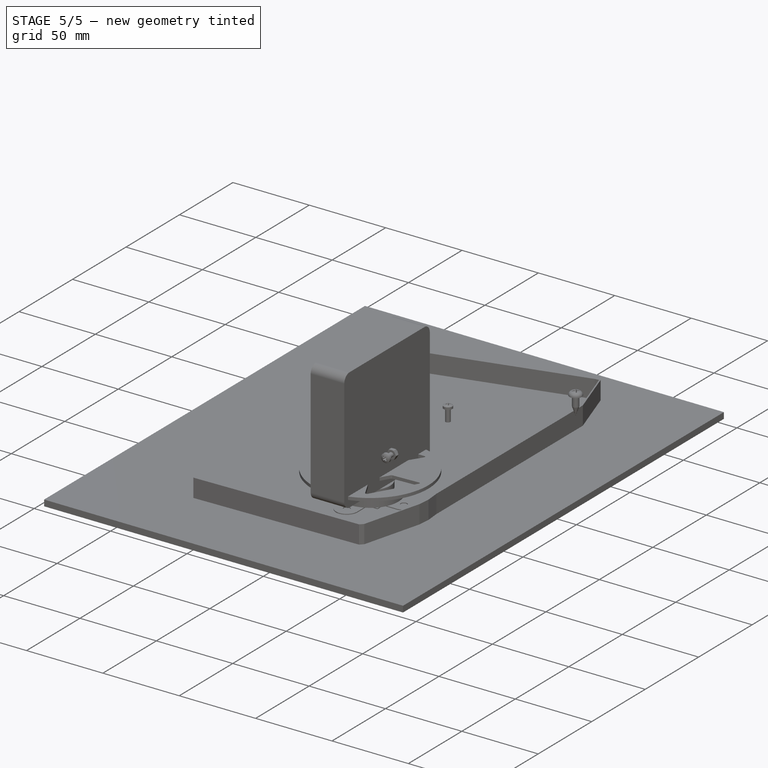
[diagram: stage 5 of 5 — iso view after this stage's code; geometry added in this stage tinted green]
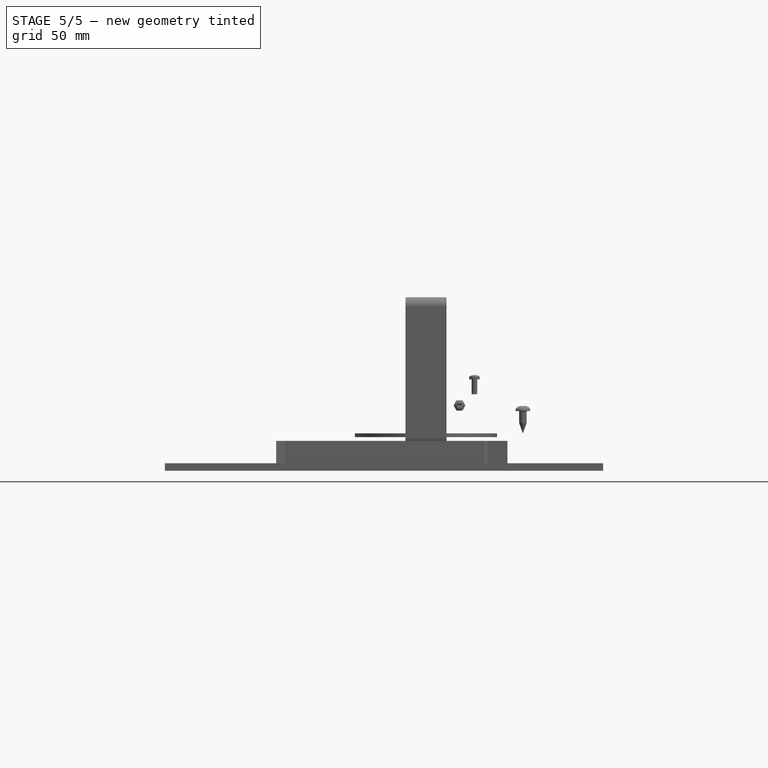
[diagram: stage 5 of 5 — front view after this stage's code; geometry added in this stage tinted green]
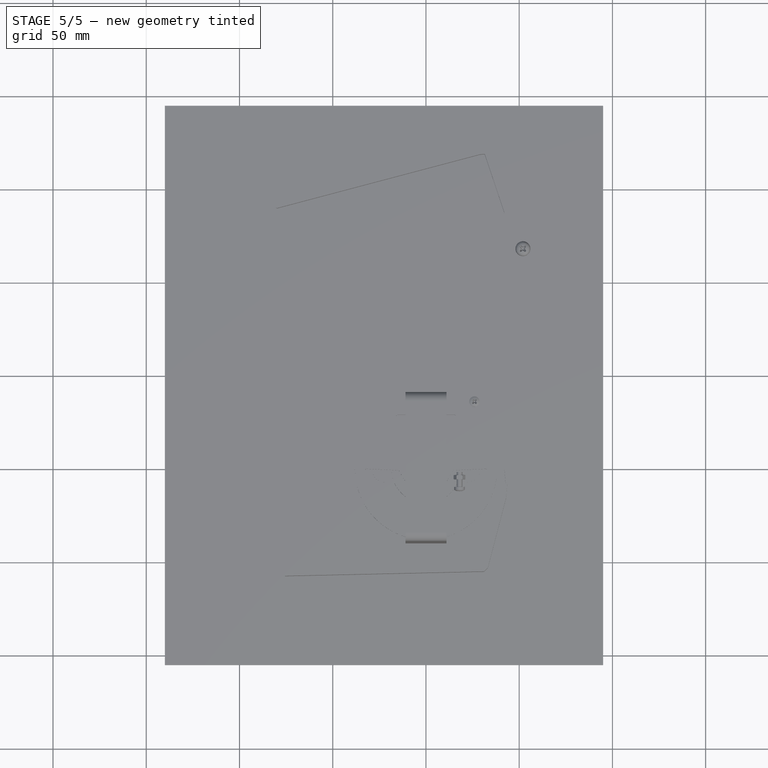
[diagram: stage 5 of 5 — top view after this stage's code; geometry added in this stage tinted green]
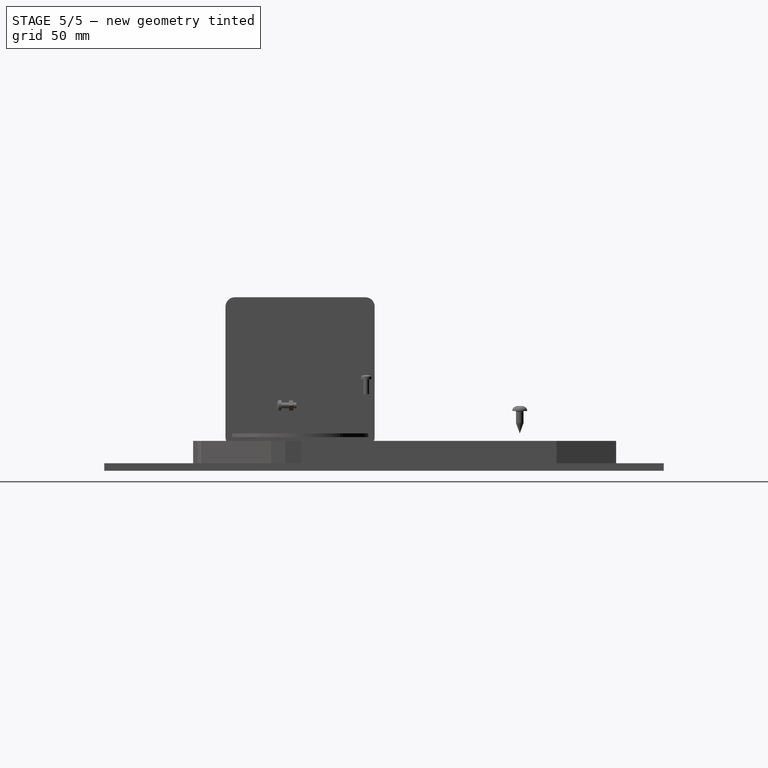
[diagram: stage 5 of 5 — right view after this stage's code; geometry added in this stage tinted green]
FEATURE [Sketcher::SketchObject] Sketch
  FullyConstrained = true
  MapMode = 5
  Support = -> [XY_Plane]
  sketch-geometry (1):
    g0: Circle CenterX=0 CenterY=0 CenterZ=0 NormalX=0 NormalY=0 NormalZ=1 AngleXU=0 Radius=10.4
  constraints (2):
    c: Coincident(g0,g-1)
    c: Radius(g0) = 10.4
FEATURE [PartDesign::Pad] Pad
  Direction = (0,0,1)
  Length = 43
  Length2 = 10
  Profile = -> Sketch
  ReferenceAxis = -> Sketch [N_Axis]
  Type = 0
FEATURE [Sketcher::SketchObject] Sketch001
  FullyConstrained = true
  MapMode = 5
  Placement = pos=(0,0,43) rot=(0,0,1;0rad)
  Support = -> [Pad]
  sketch-geometry (1):
    g0: Circle CenterX=0 CenterY=0 CenterZ=0 NormalX=0 NormalY=0 NormalZ=1 AngleXU=0 Radius=3
  constraints (2):
    c: Coincident(g0,g-1)
    c: Radius(g0) = 3
FEATURE [PartDesign::Pad] Pad001
  BaseFeature = -> Pad
  Direction = (0,0,1)
  Length = 2
  Length2 = 10
  Profile = -> Sketch001
  ReferenceAxis = -> Sketch001 [N_Axis]
  Type = 0
FEATURE [Sketcher::SketchObject] Sketch002
  FullyConstrained = true
  MapMode = 5
  Placement = pos=(0,0,45) rot=(0,0,1;0rad)
  Support = -> [Pad001]
  sketch-geometry (1):
    g0: Circle CenterX=0 CenterY=0 CenterZ=0 NormalX=0 NormalY=0 NormalZ=1 AngleXU=0 Radius=2
  constraints (2):
    c: Coincident(g0,g-1)
    c: Radius(g0) = 2
FEATURE [PartDesign::Pad] Pad002
  BaseFeature = -> Pad001
  Direction = (0,0,1)
  Length = 11
  Length2 = 10
  Profile = -> Sketch002
  ReferenceAxis = -> Sketch002 [N_Axis]
  Type = 0
FEATURE [PartDesign::PolarPattern] PolarPattern
  Angle = 360
  Axis = -> Sketch006 [N_Axis]
  BaseFeature = -> Pocket
  Occurrences = 3
  Originals = -> [Pocket]
FEATURE [Sketcher::SketchObject] Sketch007
  FullyConstrained = true
  MapMode = 5
  Placement = pos=(0,0,20) rot=(0,0,1;0rad)
  Support = -> [PolarPattern]
  sketch-geometry (1):
    g0: Circle CenterX=0 CenterY=0 CenterZ=0 NormalX=0 NormalY=0 NormalZ=1 AngleXU=0 Radius=4
  constraints (2):
    c: Coincident(g0,g-1)
    c: Radius(g0) = 4
FEATURE [PartDesign::Pocket] Pocket001
  BaseFeature = -> PolarPattern
  Direction = (0,0,-1)
  Length = 5
  Length2 = 5
  Profile = -> Sketch007
  ReferenceAxis = -> Sketch007 [N_Axis]
  Type = 1
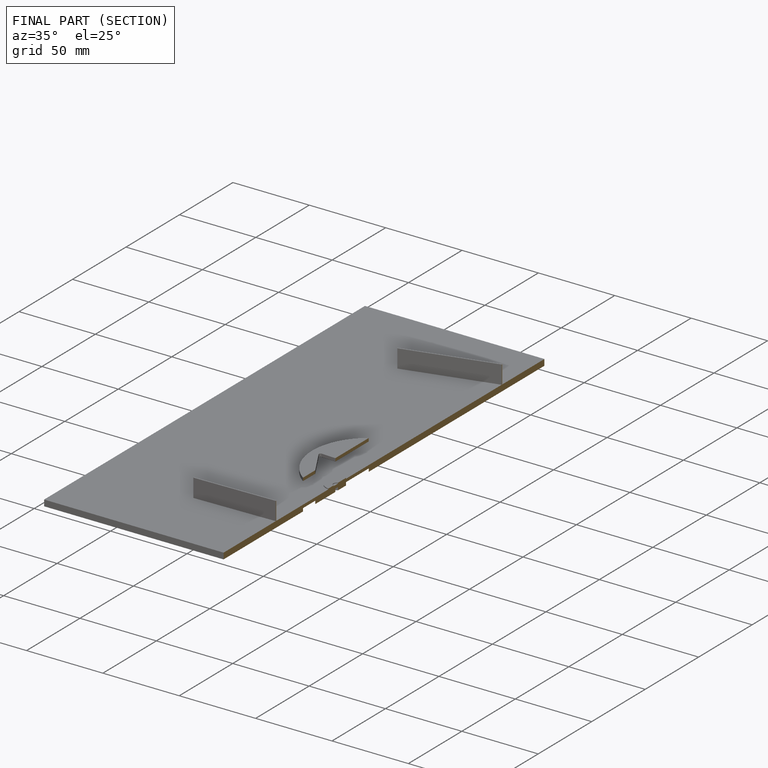
[diagram: finished part — half-section view (interior)]
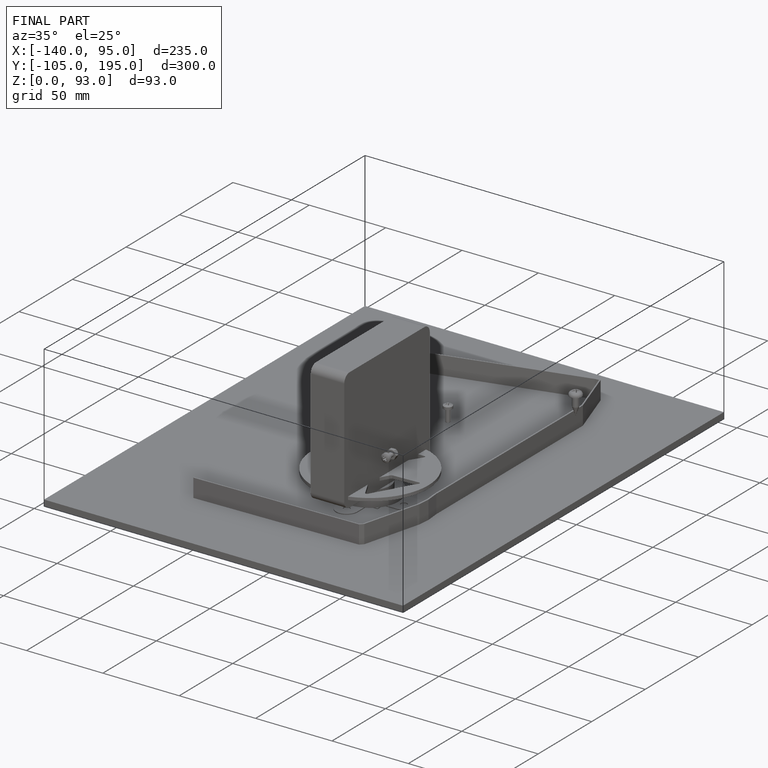
[diagram: finished part — iso view with bounding-box wireframe]
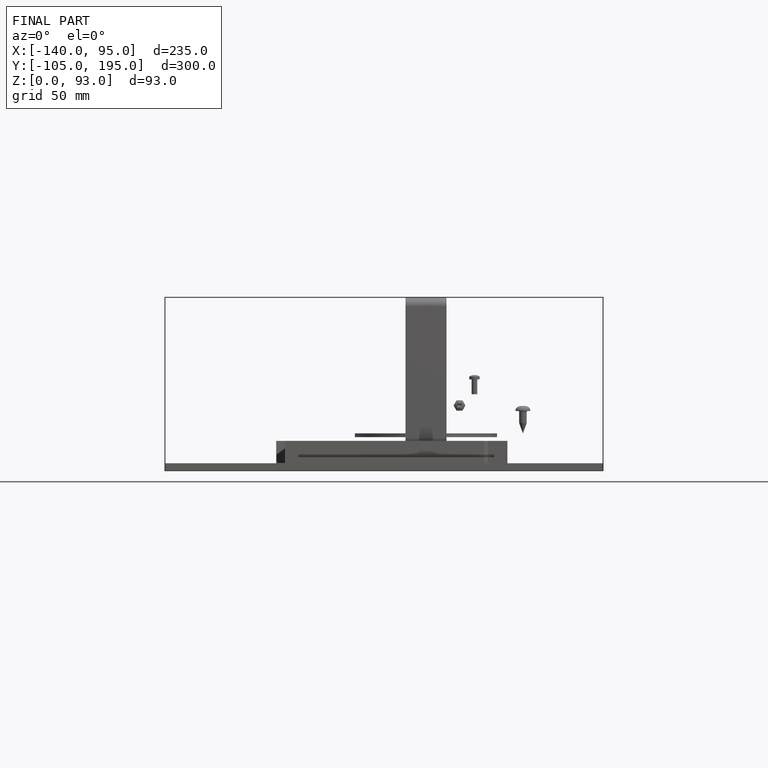
[diagram: finished part — front view with bounding-box wireframe]
